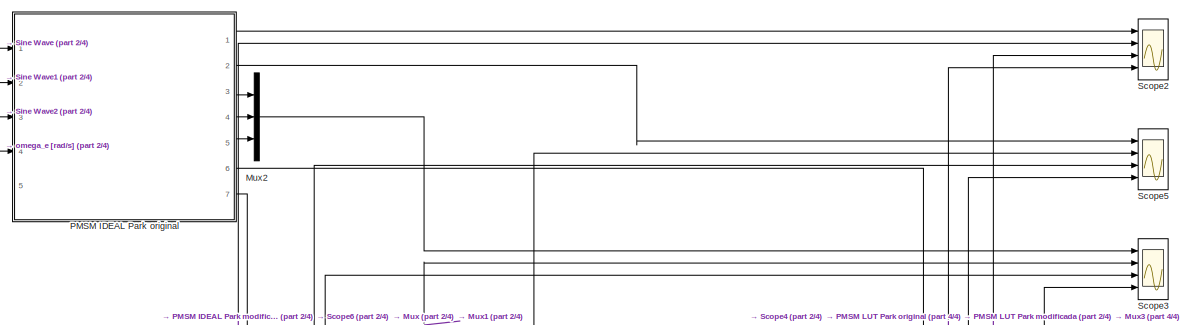
[diagram: root canvas - part 1/4, top center region]
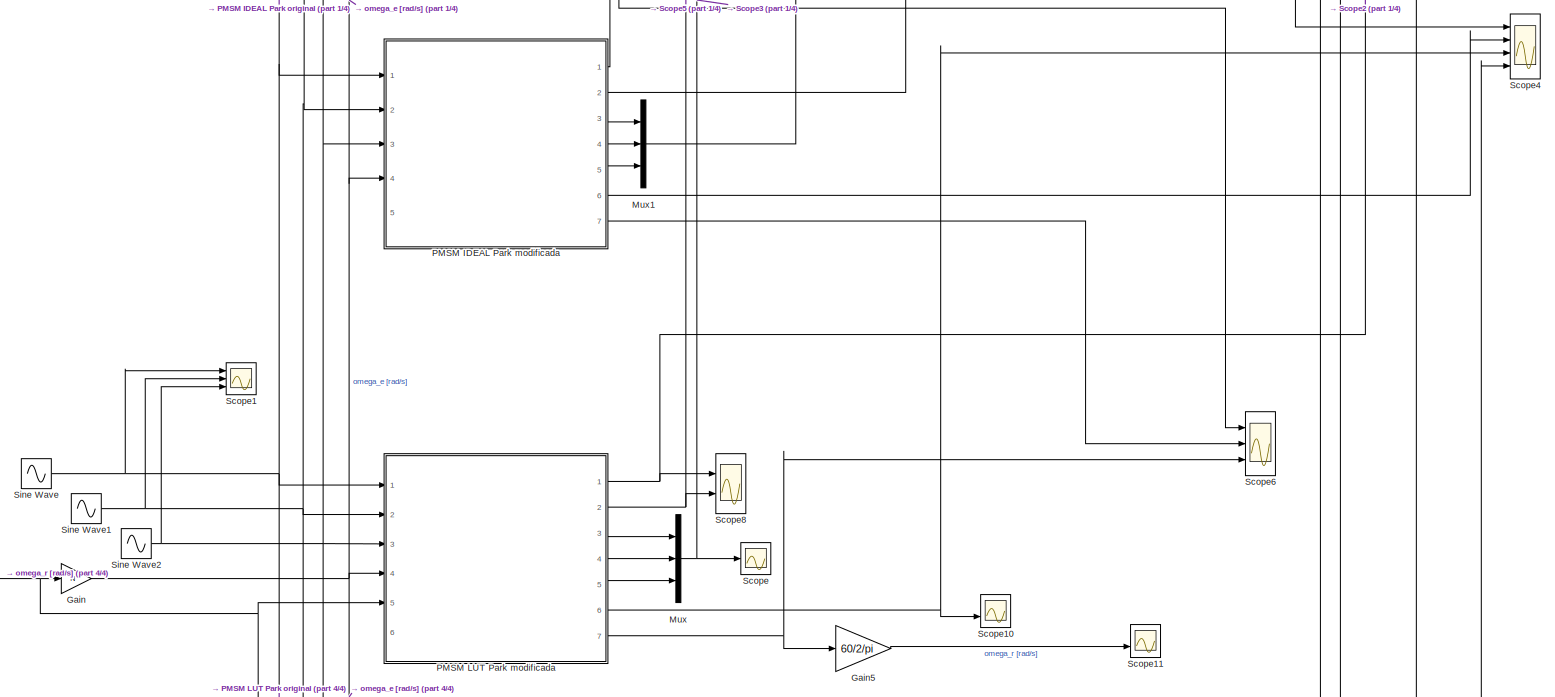
[diagram: root canvas - part 2/4, central region]
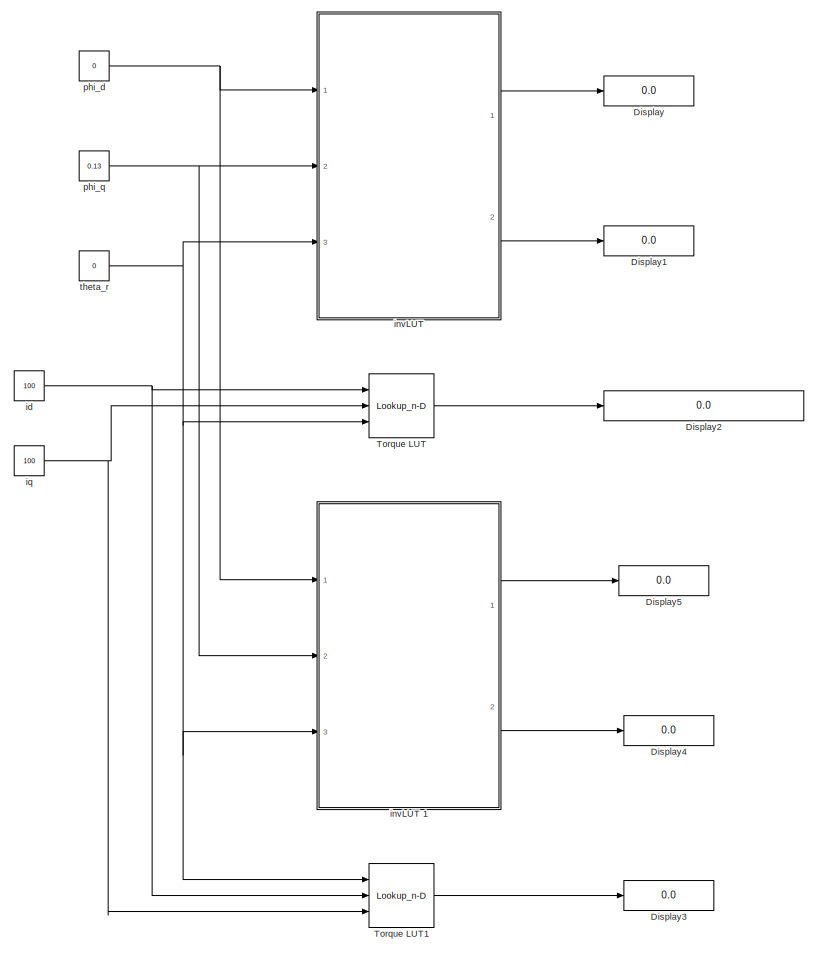
[diagram: root canvas - part 3/4, bottom right region]
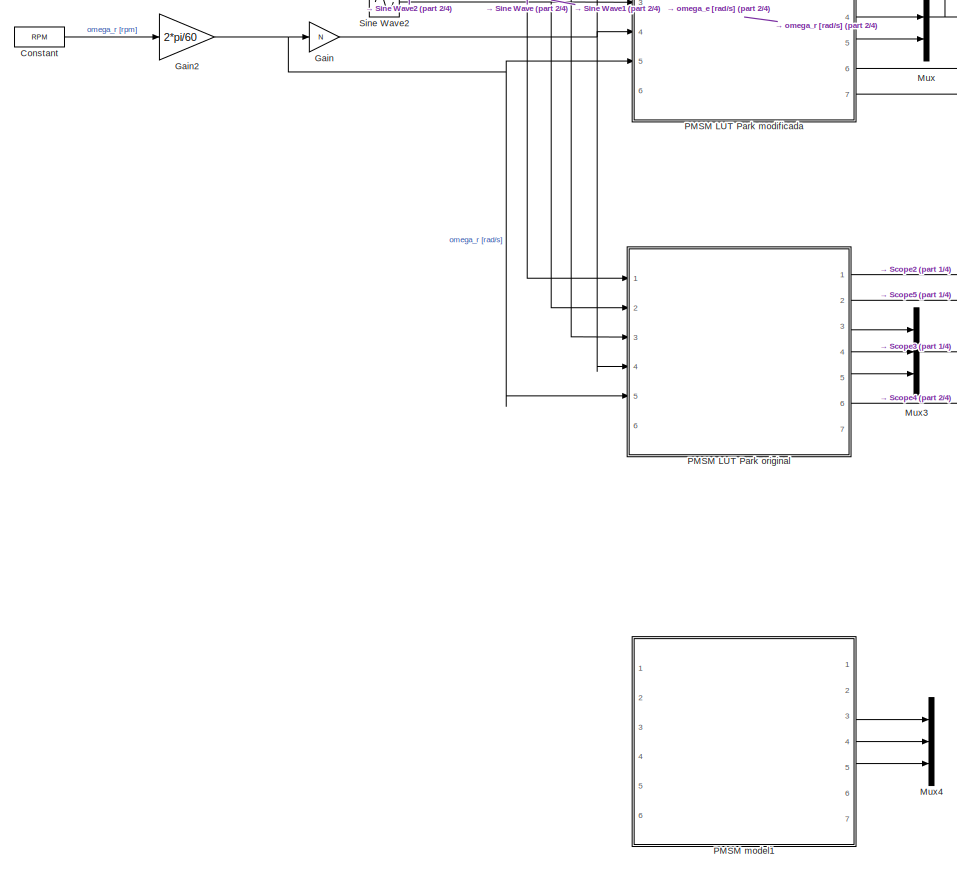
[diagram: root canvas - part 4/4, bottom left region]
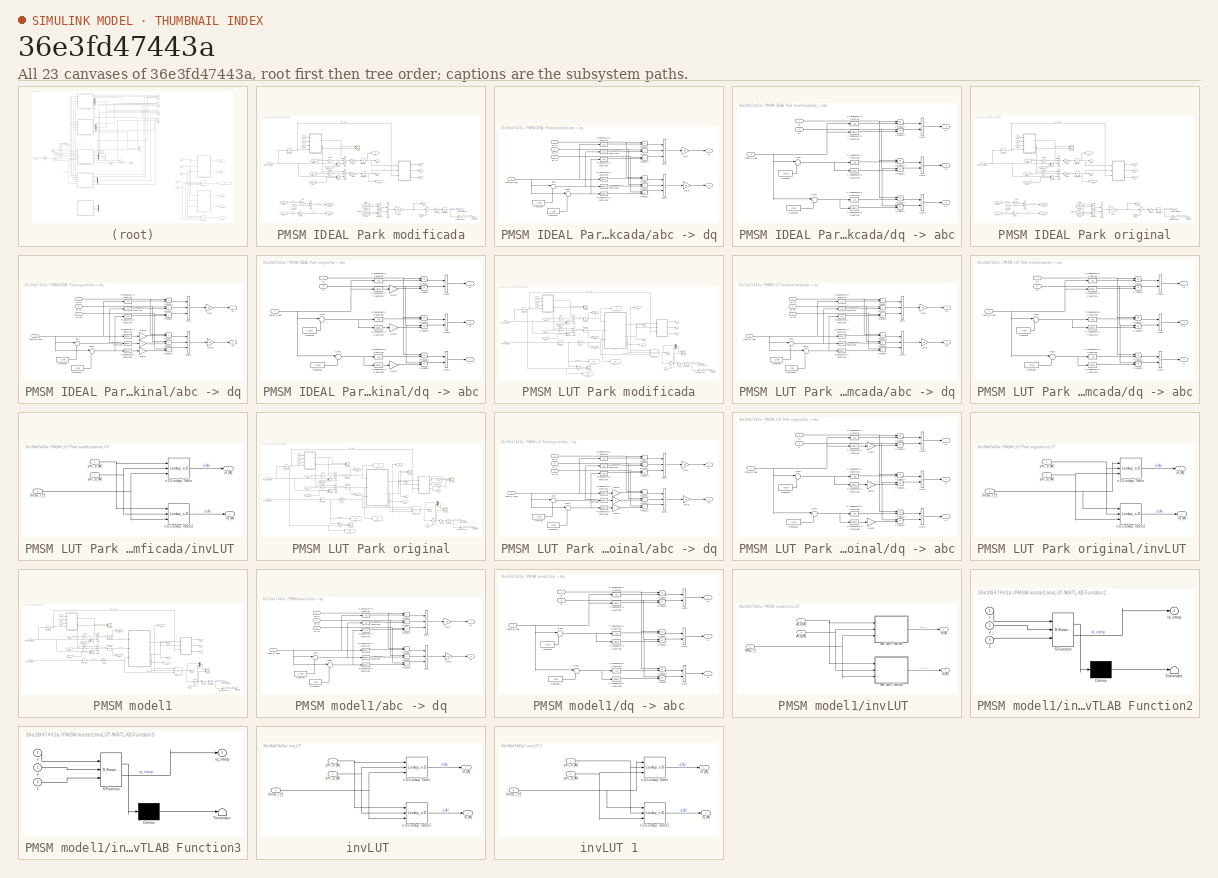
[diagram: thumbnail index - all 23 canvases of the model, root first then tree order]
MODEL slx_36e3fd47443a
KIND model
CONFIG AbsTol = 1e-3
CONFIG EnableMultiTasking = off
CONFIG FixedStep = Ts
CONFIG MaxStep = auto
CONFIG MinStep = auto
CONFIG RelTol = 1e-3
CONFIG SampleTimeConstraint = Unconstrained
CONFIG SolverName = FixedStepAuto
CONFIG StartTime = 0.0
CONFIG StopFcn = ee_addSimlogTimeStamp(bdroot)
CONFIG StopTime = tsim
BLOCK [Constant] Constant
  Value = RPM
BLOCK [Display] Display
  Decimation = 1
  Format = long
  Ports = [1]
BLOCK [Display] Display1
  Decimation = 1
  Ports = [1]
BLOCK [Display] Display2
  Decimation = 1
  Format = long
  Ports = [1]
BLOCK [Display] Display3
  Decimation = 1
  Ports = [1]
BLOCK [Display] Display4
  Decimation = 1
  Ports = [1]
BLOCK [Display] Display5
  Decimation = 1
  Format = long
  Ports = [1]
BLOCK [Gain] Gain
  Gain = N
BLOCK [Gain] Gain2
  Gain = 2*pi/60
BLOCK [Gain] Gain5
  Gain = 60/2/pi
BLOCK [Mux] Mux
  DisplayOption = bar
  Inputs = 3
  Ports = [3, 1]
BLOCK [Mux] Mux1
  DisplayOption = bar
  Inputs = 3
  Ports = [3, 1]
BLOCK [Mux] Mux2
  DisplayOption = bar
  Inputs = 3
  Ports = [3, 1]
BLOCK [Mux] Mux3
  DisplayOption = bar
  Inputs = 3
  Ports = [3, 1]
BLOCK [Mux] Mux4
  Commented = on
  DisplayOption = bar
  Inputs = 3
  Ports = [3, 1]
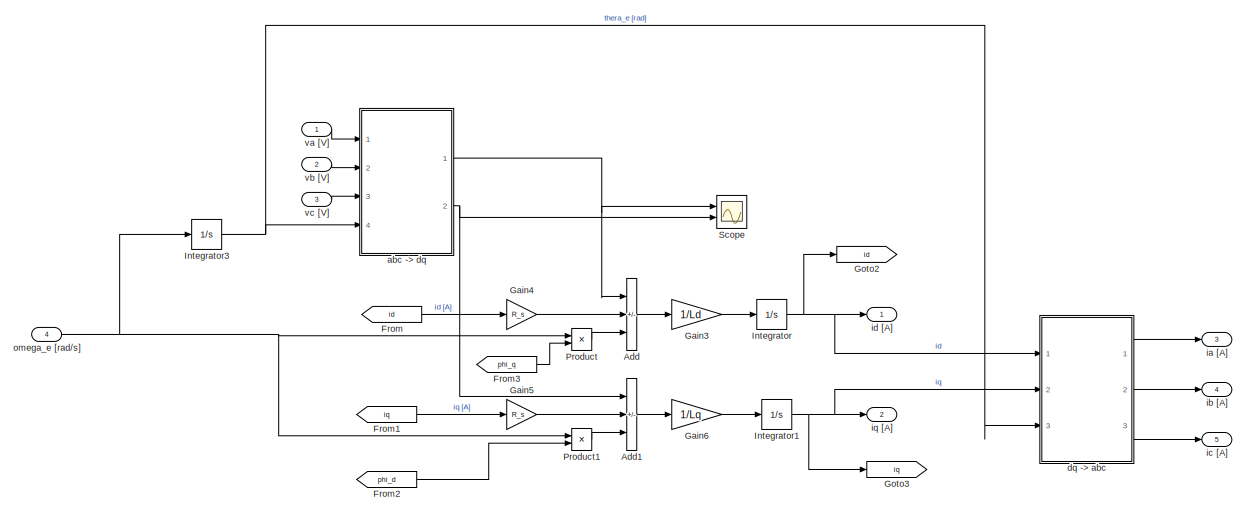
[diagram: PMSM IDEAL Park modificada - part 1/2, full width, middle band]
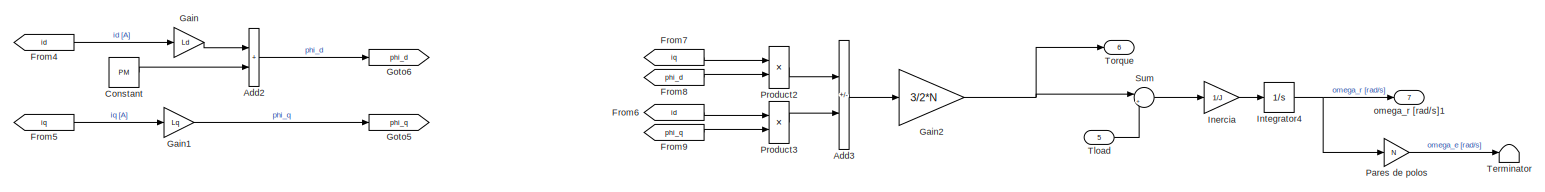
[diagram: PMSM IDEAL Park modificada - part 2/2, full width, bottom band]
BLOCK [SubSystem] PMSM IDEAL Park modificada
  Ports = [5, 7]
  RequestExecContextInheritance = off
BLOCK [Sum] PMSM IDEAL Park modificada/Add
  IconShape = rectangular
  Inputs = +--
  Ports = [3, 1]
BLOCK [Sum] PMSM IDEAL Park modificada/Add1
  IconShape = rectangular
  Inputs = +-+
  Ports = [3, 1]
BLOCK [Sum] PMSM IDEAL Park modificada/Add2
  IconShape = rectangular
  Ports = [2, 1]
BLOCK [Sum] PMSM IDEAL Park modificada/Add3
  IconShape = rectangular
  Inputs = -+
  Ports = [2, 1]
BLOCK [Constant] PMSM IDEAL Park modificada/Constant
  Value = PM
BLOCK [From] PMSM IDEAL Park modificada/From
  GotoTag = id
BLOCK [From] PMSM IDEAL Park modificada/From1
  GotoTag = iq
BLOCK [From] PMSM IDEAL Park modificada/From2
  GotoTag = phi_d
BLOCK [From] PMSM IDEAL Park modificada/From3
  GotoTag = phi_q
BLOCK [From] PMSM IDEAL Park modificada/From4
  GotoTag = id
BLOCK [From] PMSM IDEAL Park modificada/From5
  GotoTag = iq
BLOCK [From] PMSM IDEAL Park modificada/From6
  GotoTag = id
BLOCK [From] PMSM IDEAL Park modificada/From7
  GotoTag = iq
BLOCK [From] PMSM IDEAL Park modificada/From8
  GotoTag = phi_d
BLOCK [From] PMSM IDEAL Park modificada/From9
  GotoTag = phi_q
BLOCK [Gain] PMSM IDEAL Park modificada/Gain
  Gain = Ld
BLOCK [Gain] PMSM IDEAL Park modificada/Gain1
  Gain = Lq
BLOCK [Gain] PMSM IDEAL Park modificada/Gain2
  Gain = 3/2*N
BLOCK [Gain] PMSM IDEAL Park modificada/Gain3
  Gain = 1/Ld
BLOCK [Gain] PMSM IDEAL Park modificada/Gain4
  Gain = R_s
BLOCK [Gain] PMSM IDEAL Park modificada/Gain5
  Gain = R_s
BLOCK [Gain] PMSM IDEAL Park modificada/Gain6
  Gain = 1/Lq
BLOCK [Goto] PMSM IDEAL Park modificada/Goto2
  GotoTag = id
BLOCK [Goto] PMSM IDEAL Park modificada/Goto3
  GotoTag = iq
BLOCK [Goto] PMSM IDEAL Park modificada/Goto5
  GotoTag = phi_q
BLOCK [Goto] PMSM IDEAL Park modificada/Goto6
  GotoTag = phi_d
BLOCK [Gain] PMSM IDEAL Park modificada/Inercia
  Gain = 1/J
BLOCK [Integrator] PMSM IDEAL Park modificada/Integrator
  InitialCondition = -0.2
  Ports = [1, 1]
BLOCK [Integrator] PMSM IDEAL Park modificada/Integrator1
  Ports = [1, 1]
BLOCK [Integrator] PMSM IDEAL Park modificada/Integrator3
  Ports = [1, 1]
BLOCK [Integrator] PMSM IDEAL Park modificada/Integrator4
  InitialCondition = RPM*2*pi/60
  Ports = [1, 1]
BLOCK [Gain] PMSM IDEAL Park modificada/Pares de polos
  Gain = N
BLOCK [Product] PMSM IDEAL Park modificada/Product
  Ports = [2, 1]
BLOCK [Product] PMSM IDEAL Park modificada/Product1
  Ports = [2, 1]
BLOCK [Product] PMSM IDEAL Park modificada/Product2
  Ports = [2, 1]
BLOCK [Product] PMSM IDEAL Park modificada/Product3
  Ports = [2, 1]
BLOCK [Scope] PMSM IDEAL Park modificada/Scope
  Floating = off
  NumInputPorts = 2
  Ports = [2]
  ScopeSpecificationString = Simulink.scopes.TimeScopeBlockCfg('CurrentConfiguration', extmgr.ConfigurationSet(extmgr.Configuration('Core','General UI',true),extmgr.Configuration('Core','Source UI',true),extmgr.Configuration('Sources','WiredSimulink',true,'DataLoggingVariableName','ScopeData4'),extmgr.Configuration('Visuals','Time Domain',true,'SerializedDisplays',{struct('MinYLimReal','9.999999999999979','MaxYLimReal','10.00...<+2121ch>
BLOCK [Sum] PMSM IDEAL Park modificada/Sum
  Inputs = |+-
  Ports = [2, 1]
BLOCK [Terminator] PMSM IDEAL Park modificada/Terminator
BLOCK [Inport] PMSM IDEAL Park modificada/Tload
  Port = 5
BLOCK [Outport] PMSM IDEAL Park modificada/Torque
  Port = 6
BLOCK [SubSystem] PMSM IDEAL Park modificada/abc -> dq
  Ports = [4, 2]
  RequestExecContextInheritance = off
BLOCK [Constant] PMSM IDEAL Park modificada/abc -> dq/Constant
  Value = -2*pi/3
BLOCK [Constant] PMSM IDEAL Park modificada/abc -> dq/Constant1
  Value = 2*pi/3
BLOCK [Gain] PMSM IDEAL Park modificada/abc -> dq/Gain
  Gain = 2/3
BLOCK [Gain] PMSM IDEAL Park modificada/abc -> dq/Gain1
  Gain = 2/3
BLOCK [Product] PMSM IDEAL Park modificada/abc -> dq/Product1
  Ports = [2, 1]
  RndMeth = Zero
BLOCK [Product] PMSM IDEAL Park modificada/abc -> dq/Product2
  Ports = [2, 1]
  RndMeth = Zero
BLOCK [Product] PMSM IDEAL Park modificada/abc -> dq/Product3
  Ports = [2, 1]
  RndMeth = Zero
BLOCK [Product] PMSM IDEAL Park modificada/abc -> dq/Product4
  Ports = [2, 1]
  RndMeth = Zero
BLOCK [Product] PMSM IDEAL Park modificada/abc -> dq/Product5
  Ports = [2, 1]
  RndMeth = Zero
BLOCK [Product] PMSM IDEAL Park modificada/abc -> dq/Product6
  Ports = [2, 1]
  RndMeth = Zero
BLOCK [Sum] PMSM IDEAL Park modificada/abc -> dq/Sum
  Inputs = |++
  Ports = [2, 1]
BLOCK [Sum] PMSM IDEAL Park modificada/abc -> dq/Sum1
  Inputs = |++
  Ports = [2, 1]
BLOCK [Sum] PMSM IDEAL Park modificada/abc -> dq/Sum2
  IconShape = rectangular
  Inputs = +++
  Ports = [3, 1]
BLOCK [Sum] PMSM IDEAL Park modificada/abc -> dq/Sum3
  IconShape = rectangular
  Inputs = +++
  Ports = [3, 1]
BLOCK [Trigonometry] PMSM IDEAL Park modificada/abc -> dq/Trigonometric Function
  Operator = cos
  Ports = [1, 1]
BLOCK [Trigonometry] PMSM IDEAL Park modificada/abc -> dq/Trigonometric Function1
  Ports = [1, 1]
BLOCK [Trigonometry] PMSM IDEAL Park modificada/abc -> dq/Trigonometric Function2
  Operator = cos
  Ports = [1, 1]
BLOCK [Trigonometry] PMSM IDEAL Park modificada/abc -> dq/Trigonometric Function3
  Ports = [1, 1]
BLOCK [Trigonometry] PMSM IDEAL Park modificada/abc -> dq/Trigonometric Function4
  Operator = cos
  Ports = [1, 1]
BLOCK [Trigonometry] PMSM IDEAL Park modificada/abc -> dq/Trigonometric Function5
  Ports = [1, 1]
BLOCK [Inport] PMSM IDEAL Park modificada/abc -> dq/theta_e [rad]
  Port = 4
BLOCK [Inport] PMSM IDEAL Park modificada/abc -> dq/va [V]
BLOCK [Inport] PMSM IDEAL Park modificada/abc -> dq/vb [V]
  Port = 2
BLOCK [Inport] PMSM IDEAL Park modificada/abc -> dq/vc [V]
  Port = 3
BLOCK [Outport] PMSM IDEAL Park modificada/abc -> dq/vd
BLOCK [Outport] PMSM IDEAL Park modificada/abc -> dq/vq
  Port = 2
BLOCK [SubSystem] PMSM IDEAL Park modificada/dq -> abc
  Ports = [3, 3]
  RequestExecContextInheritance = off
BLOCK [Constant] PMSM IDEAL Park modificada/dq -> abc/Constant
  Value = -2*pi/3
BLOCK [Constant] PMSM IDEAL Park modificada/dq -> abc/Constant1
  Value = 2*pi/3
BLOCK [Product] PMSM IDEAL Park modificada/dq -> abc/Product1
  Ports = [2, 1]
  RndMeth = Zero
BLOCK [Product] PMSM IDEAL Park modificada/dq -> abc/Product2
  Ports = [2, 1]
  RndMeth = Zero
BLOCK [Product] PMSM IDEAL Park modificada/dq -> abc/Product3
  Ports = [2, 1]
  RndMeth = Zero
BLOCK [Product] PMSM IDEAL Park modificada/dq -> abc/Product4
  Ports = [2, 1]
  RndMeth = Zero
BLOCK [Product] PMSM IDEAL Park modificada/dq -> abc/Product5
  Ports = [2, 1]
  RndMeth = Zero
BLOCK [Product] PMSM IDEAL Park modificada/dq -> abc/Product6
  Ports = [2, 1]
  RndMeth = Zero
BLOCK [Sum] PMSM IDEAL Park modificada/dq -> abc/Sum
  Inputs = |++
  Ports = [2, 1]
BLOCK [Sum] PMSM IDEAL Park modificada/dq -> abc/Sum1
  Inputs = |++
  Ports = [2, 1]
BLOCK [Sum] PMSM IDEAL Park modificada/dq -> abc/Sum2
  IconShape = rectangular
  Ports = [2, 1]
BLOCK [Sum] PMSM IDEAL Park modificada/dq -> abc/Sum3
  IconShape = rectangular
  Ports = [2, 1]
BLOCK [Sum] PMSM IDEAL Park modificada/dq -> abc/Sum4
  IconShape = rectangular
  Ports = [2, 1]
BLOCK [Trigonometry] PMSM IDEAL Park modificada/dq -> abc/Trigonometric Function
  Operator = cos
  Ports = [1, 1]
BLOCK [Trigonometry] PMSM IDEAL Park modificada/dq -> abc/Trigonometric Function1
  Ports = [1, 1]
BLOCK [Trigonometry] PMSM IDEAL Park modificada/dq -> abc/Trigonometric Function2
  Operator = cos
  Ports = [1, 1]
BLOCK [Trigonometry] PMSM IDEAL Park modificada/dq -> abc/Trigonometric Function3
  Ports = [1, 1]
BLOCK [Trigonometry] PMSM IDEAL Park modificada/dq -> abc/Trigonometric Function4
  Operator = cos
  Ports = [1, 1]
BLOCK [Trigonometry] PMSM IDEAL Park modificada/dq -> abc/Trigonometric Function5
  Ports = [1, 1]
BLOCK [Outport] PMSM IDEAL Park modificada/dq -> abc/ia
BLOCK [Outport] PMSM IDEAL Park modificada/dq -> abc/ib
  Port = 2
BLOCK [Outport] PMSM IDEAL Park modificada/dq -> abc/ic
  Port = 3
BLOCK [Inport] PMSM IDEAL Park modificada/dq -> abc/id
BLOCK [Inport] PMSM IDEAL Park modificada/dq -> abc/iq
  Port = 2
BLOCK [Inport] PMSM IDEAL Park modificada/dq -> abc/theta_e [rad]
  Port = 3
BLOCK [Outport] PMSM IDEAL Park modificada/ia [A]
  Port = 3
BLOCK [Outport] PMSM IDEAL Park modificada/ib [A]
  Port = 4
BLOCK [Outport] PMSM IDEAL Park modificada/ic [A]
  Port = 5
BLOCK [Outport] PMSM IDEAL Park modificada/id [A]
BLOCK [Outport] PMSM IDEAL Park modificada/iq [A]
  Port = 2
BLOCK [Inport] PMSM IDEAL Park modificada/omega_e [rad//s]
  Port = 4
BLOCK [Outport] PMSM IDEAL Park modificada/omega_r [rad//s]1
  Port = 7
BLOCK [Inport] PMSM IDEAL Park modificada/va [V]
BLOCK [Inport] PMSM IDEAL Park modificada/vb [V]
  Port = 2
BLOCK [Inport] PMSM IDEAL Park modificada/vc [V]
  Port = 3
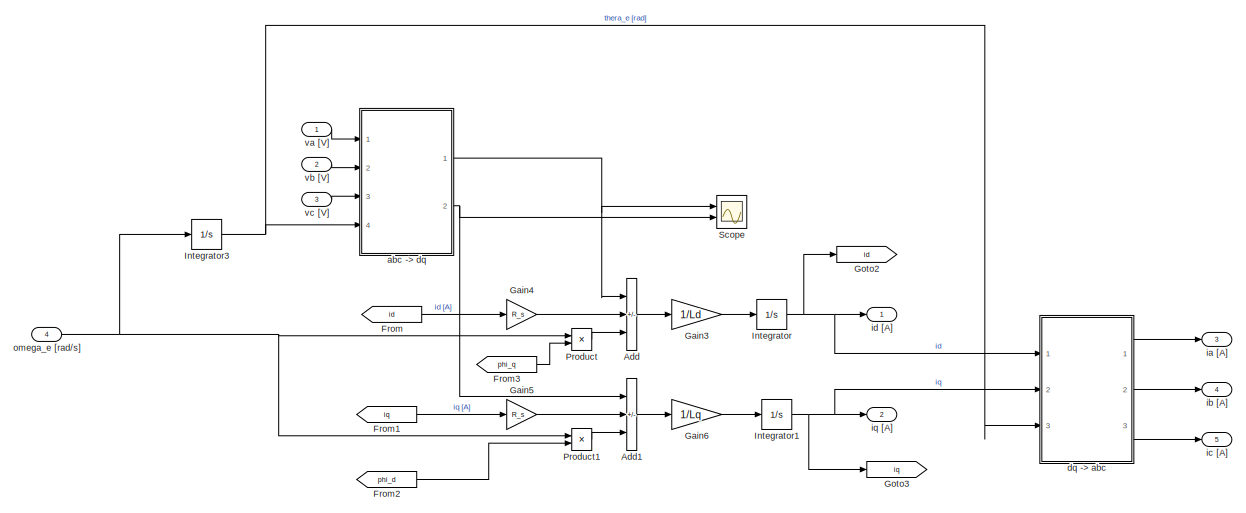
[diagram: PMSM IDEAL Park original - part 1/2, full width, middle band]
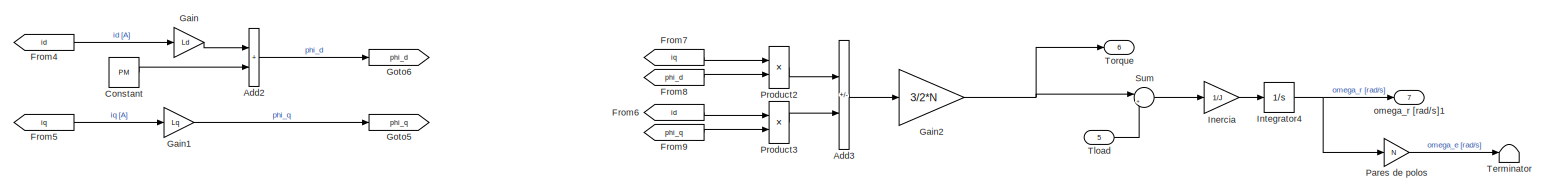
[diagram: PMSM IDEAL Park original - part 2/2, full width, bottom band]
BLOCK [SubSystem] PMSM IDEAL Park original
  Ports = [5, 7]
  RequestExecContextInheritance = off
BLOCK [Sum] PMSM IDEAL Park original/Add
  IconShape = rectangular
  Inputs = +-+
  Ports = [3, 1]
BLOCK [Sum] PMSM IDEAL Park original/Add1
  IconShape = rectangular
  Inputs = +--
  Ports = [3, 1]
BLOCK [Sum] PMSM IDEAL Park original/Add2
  IconShape = rectangular
  Ports = [2, 1]
BLOCK [Sum] PMSM IDEAL Park original/Add3
  IconShape = rectangular
  Inputs = +-
  Ports = [2, 1]
BLOCK [Constant] PMSM IDEAL Park original/Constant
  Value = PM
BLOCK [From] PMSM IDEAL Park original/From
  GotoTag = id
BLOCK [From] PMSM IDEAL Park original/From1
  GotoTag = iq
BLOCK [From] PMSM IDEAL Park original/From2
  GotoTag = phi_d
BLOCK [From] PMSM IDEAL Park original/From3
  GotoTag = phi_q
BLOCK [From] PMSM IDEAL Park original/From4
  GotoTag = id
BLOCK [From] PMSM IDEAL Park original/From5
  GotoTag = iq
BLOCK [From] PMSM IDEAL Park original/From6
  GotoTag = id
BLOCK [From] PMSM IDEAL Park original/From7
  GotoTag = iq
BLOCK [From] PMSM IDEAL Park original/From8
  GotoTag = phi_d
BLOCK [From] PMSM IDEAL Park original/From9
  GotoTag = phi_q
BLOCK [Gain] PMSM IDEAL Park original/Gain
  Gain = Ld
BLOCK [Gain] PMSM IDEAL Park original/Gain1
  Gain = Lq
BLOCK [Gain] PMSM IDEAL Park original/Gain2
  Gain = 3/2*N
BLOCK [Gain] PMSM IDEAL Park original/Gain3
  Gain = 1/Ld
BLOCK [Gain] PMSM IDEAL Park original/Gain4
  Gain = R_s
BLOCK [Gain] PMSM IDEAL Park original/Gain5
  Gain = R_s
BLOCK [Gain] PMSM IDEAL Park original/Gain6
  Gain = 1/Lq
BLOCK [Goto] PMSM IDEAL Park original/Goto2
  GotoTag = id
BLOCK [Goto] PMSM IDEAL Park original/Goto3
  GotoTag = iq
BLOCK [Goto] PMSM IDEAL Park original/Goto5
  GotoTag = phi_q
BLOCK [Goto] PMSM IDEAL Park original/Goto6
  GotoTag = phi_d
BLOCK [Gain] PMSM IDEAL Park original/Inercia
  Gain = 1/J
BLOCK [Integrator] PMSM IDEAL Park original/Integrator
  InitialCondition = -0.2
  Ports = [1, 1]
BLOCK [Integrator] PMSM IDEAL Park original/Integrator1
  Ports = [1, 1]
BLOCK [Integrator] PMSM IDEAL Park original/Integrator3
  Ports = [1, 1]
BLOCK [Integrator] PMSM IDEAL Park original/Integrator4
  InitialCondition = RPM*2*pi/60
  Ports = [1, 1]
BLOCK [Gain] PMSM IDEAL Park original/Pares de polos
  Gain = N
BLOCK [Product] PMSM IDEAL Park original/Product
  Ports = [2, 1]
BLOCK [Product] PMSM IDEAL Park original/Product1
  Ports = [2, 1]
BLOCK [Product] PMSM IDEAL Park original/Product2
  Ports = [2, 1]
BLOCK [Product] PMSM IDEAL Park original/Product3
  Ports = [2, 1]
BLOCK [Scope] PMSM IDEAL Park original/Scope
  Floating = off
  NumInputPorts = 2
  Ports = [2]
  ScopeSpecificationString = Simulink.scopes.TimeScopeBlockCfg('CurrentConfiguration', extmgr.ConfigurationSet(extmgr.Configuration('Core','General UI',true),extmgr.Configuration('Core','Source UI',true),extmgr.Configuration('Sources','WiredSimulink',true,'DataLoggingVariableName','ScopeData4'),extmgr.Configuration('Visuals','Time Domain',true,'SerializedDisplays',{struct('MinYLimReal','9.999999999999979','MaxYLimReal','10.00...<+2121ch>
BLOCK [Sum] PMSM IDEAL Park original/Sum
  Inputs = |+-
  Ports = [2, 1]
BLOCK [Terminator] PMSM IDEAL Park original/Terminator
BLOCK [Inport] PMSM IDEAL Park original/Tload
  Port = 5
BLOCK [Outport] PMSM IDEAL Park original/Torque
  Port = 6
BLOCK [SubSystem] PMSM IDEAL Park original/abc -> dq
  Ports = [4, 2]
  RequestExecContextInheritance = off
BLOCK [Constant] PMSM IDEAL Park original/abc -> dq/Constant
  Value = -2*pi/3
BLOCK [Constant] PMSM IDEAL Park original/abc -> dq/Constant1
  Value = 2*pi/3
BLOCK [Gain] PMSM IDEAL Park original/abc -> dq/Gain
  Gain = 2/3
BLOCK [Gain] PMSM IDEAL Park original/abc -> dq/Gain1
  Gain = 2/3
BLOCK [Gain] PMSM IDEAL Park original/abc -> dq/Gain2
  Gain = -1
BLOCK [Gain] PMSM IDEAL Park original/abc -> dq/Gain3
  Gain = -1
BLOCK [Gain] PMSM IDEAL Park original/abc -> dq/Gain4
  Gain = -1
BLOCK [Product] PMSM IDEAL Park original/abc -> dq/Product1
  Ports = [2, 1]
  RndMeth = Zero
BLOCK [Product] PMSM IDEAL Park original/abc -> dq/Product2
  Ports = [2, 1]
  RndMeth = Zero
BLOCK [Product] PMSM IDEAL Park original/abc -> dq/Product3
  Ports = [2, 1]
  RndMeth = Zero
BLOCK [Product] PMSM IDEAL Park original/abc -> dq/Product4
  Ports = [2, 1]
  RndMeth = Zero
BLOCK [Product] PMSM IDEAL Park original/abc -> dq/Product5
  Ports = [2, 1]
  RndMeth = Zero
BLOCK [Product] PMSM IDEAL Park original/abc -> dq/Product6
  Ports = [2, 1]
  RndMeth = Zero
BLOCK [Sum] PMSM IDEAL Park original/abc -> dq/Sum
  Inputs = |++
  Ports = [2, 1]
BLOCK [Sum] PMSM IDEAL Park original/abc -> dq/Sum1
  Inputs = |++
  Ports = [2, 1]
BLOCK [Sum] PMSM IDEAL Park original/abc -> dq/Sum2
  IconShape = rectangular
  Inputs = +++
  Ports = [3, 1]
BLOCK [Sum] PMSM IDEAL Park original/abc -> dq/Sum3
  IconShape = rectangular
  Inputs = +++
  Ports = [3, 1]
BLOCK [Trigonometry] PMSM IDEAL Park original/abc -> dq/Trigonometric Function
  Operator = cos
  Ports = [1, 1]
BLOCK [Trigonometry] PMSM IDEAL Park original/abc -> dq/Trigonometric Function1
  Ports = [1, 1]
BLOCK [Trigonometry] PMSM IDEAL Park original/abc -> dq/Trigonometric Function2
  Operator = cos
  Ports = [1, 1]
BLOCK [Trigonometry] PMSM IDEAL Park original/abc -> dq/Trigonometric Function3
  Ports = [1, 1]
BLOCK [Trigonometry] PMSM IDEAL Park original/abc -> dq/Trigonometric Function4
  Operator = cos
  Ports = [1, 1]
BLOCK [Trigonometry] PMSM IDEAL Park original/abc -> dq/Trigonometric Function5
  Ports = [1, 1]
BLOCK [Inport] PMSM IDEAL Park original/abc -> dq/theta_e [rad]
  Port = 4
BLOCK [Inport] PMSM IDEAL Park original/abc -> dq/va [V]
BLOCK [Inport] PMSM IDEAL Park original/abc -> dq/vb [V]
  Port = 2
BLOCK [Inport] PMSM IDEAL Park original/abc -> dq/vc [V]
  Port = 3
BLOCK [Outport] PMSM IDEAL Park original/abc -> dq/vd
BLOCK [Outport] PMSM IDEAL Park original/abc -> dq/vq
  Port = 2
BLOCK [SubSystem] PMSM IDEAL Park original/dq -> abc
  Ports = [3, 3]
  RequestExecContextInheritance = off
BLOCK [Constant] PMSM IDEAL Park original/dq -> abc/Constant
  Value = -2*pi/3
BLOCK [Constant] PMSM IDEAL Park original/dq -> abc/Constant1
  Value = 2*pi/3
BLOCK [Gain] PMSM IDEAL Park original/dq -> abc/Gain1
  Gain = -1
BLOCK [Gain] PMSM IDEAL Park original/dq -> abc/Gain2
  Gain = -1
BLOCK [Gain] PMSM IDEAL Park original/dq -> abc/Gain3
  Gain = -1
BLOCK [Product] PMSM IDEAL Park original/dq -> abc/Product1
  Ports = [2, 1]
  RndMeth = Zero
BLOCK [Product] PMSM IDEAL Park original/dq -> abc/Product2
  Ports = [2, 1]
  RndMeth = Zero
BLOCK [Product] PMSM IDEAL Park original/dq -> abc/Product3
  Ports = [2, 1]
  RndMeth = Zero
BLOCK [Product] PMSM IDEAL Park original/dq -> abc/Product4
  Ports = [2, 1]
  RndMeth = Zero
BLOCK [Product] PMSM IDEAL Park original/dq -> abc/Product5
  Ports = [2, 1]
  RndMeth = Zero
BLOCK [Product] PMSM IDEAL Park original/dq -> abc/Product6
  Ports = [2, 1]
  RndMeth = Zero
BLOCK [Sum] PMSM IDEAL Park original/dq -> abc/Sum
  Inputs = |++
  Ports = [2, 1]
BLOCK [Sum] PMSM IDEAL Park original/dq -> abc/Sum1
  Inputs = |++
  Ports = [2, 1]
BLOCK [Sum] PMSM IDEAL Park original/dq -> abc/Sum2
  IconShape = rectangular
  Ports = [2, 1]
BLOCK [Sum] PMSM IDEAL Park original/dq -> abc/Sum3
  IconShape = rectangular
  Ports = [2, 1]
BLOCK [Sum] PMSM IDEAL Park original/dq -> abc/Sum4
  IconShape = rectangular
  Ports = [2, 1]
BLOCK [Trigonometry] PMSM IDEAL Park original/dq -> abc/Trigonometric Function
  Operator = cos
  Ports = [1, 1]
BLOCK [Trigonometry] PMSM IDEAL Park original/dq -> abc/Trigonometric Function1
  Ports = [1, 1]
BLOCK [Trigonometry] PMSM IDEAL Park original/dq -> abc/Trigonometric Function2
  Operator = cos
  Ports = [1, 1]
BLOCK [Trigonometry] PMSM IDEAL Park original/dq -> abc/Trigonometric Function3
  Ports = [1, 1]
BLOCK [Trigonometry] PMSM IDEAL Park original/dq -> abc/Trigonometric Function4
  Operator = cos
  Ports = [1, 1]
BLOCK [Trigonometry] PMSM IDEAL Park original/dq -> abc/Trigonometric Function5
  Ports = [1, 1]
BLOCK [Outport] PMSM IDEAL Park original/dq -> abc/ia
BLOCK [Outport] PMSM IDEAL Park original/dq -> abc/ib
  Port = 2
BLOCK [Outport] PMSM IDEAL Park original/dq -> abc/ic
  Port = 3
BLOCK [Inport] PMSM IDEAL Park original/dq -> abc/id
BLOCK [Inport] PMSM IDEAL Park original/dq -> abc/iq
  Port = 2
BLOCK [Inport] PMSM IDEAL Park original/dq -> abc/theta_e [rad]
  Port = 3
BLOCK [Outport] PMSM IDEAL Park original/ia [A]
  Port = 3
BLOCK [Outport] PMSM IDEAL Park original/ib [A]
  Port = 4
BLOCK [Outport] PMSM IDEAL Park original/ic [A]
  Port = 5
BLOCK [Outport] PMSM IDEAL Park original/id [A]
BLOCK [Outport] PMSM IDEAL Park original/iq [A]
  Port = 2
BLOCK [Inport] PMSM IDEAL Park original/omega_e [rad//s]
  Port = 4
BLOCK [Outport] PMSM IDEAL Park original/omega_r [rad//s]1
  Port = 7
BLOCK [Inport] PMSM IDEAL Park original/va [V]
BLOCK [Inport] PMSM IDEAL Park original/vb [V]
  Port = 2
BLOCK [Inport] PMSM IDEAL Park original/vc [V]
  Port = 3
BLOCK [SubSystem] PMSM LUT Park modificada
  Ports = [6, 7]
  RequestExecContextInheritance = off
BLOCK [Sum] PMSM LUT Park modificada/Add
  IconShape = rectangular
  Inputs = +--
  Ports = [3, 1]
BLOCK [Sum] PMSM LUT Park modificada/Add1
  IconShape = rectangular
  Inputs = +-+
  Ports = [3, 1]
BLOCK [Display] PMSM LUT Park modificada/Display
  Decimation = 1
  Ports = [1]
BLOCK [Display] PMSM LUT Park modificada/Display1
  Decimation = 1
  Ports = [1]
BLOCK [Display] PMSM LUT Park modificada/Display2
  Decimation = 1
  Ports = [1]
BLOCK [Display] PMSM LUT Park modificada/Display3
  Decimation = 1
  Ports = [1]
BLOCK [From] PMSM LUT Park modificada/From
  GotoTag = id
BLOCK [From] PMSM LUT Park modificada/From1
  GotoTag = iq
BLOCK [From] PMSM LUT Park modificada/From2
  GotoTag = phi_d
BLOCK [From] PMSM LUT Park modificada/From3
  GotoTag = phi_q
BLOCK [Gain] PMSM LUT Park modificada/Gain
  Gain = N
BLOCK [Gain] PMSM LUT Park modificada/Gain3
  Gain = 180/pi
BLOCK [Gain] PMSM LUT Park modificada/Gain4
  Gain = R_s
BLOCK [Gain] PMSM LUT Park modificada/Gain5
  Gain = R_s
BLOCK [Goto] PMSM LUT Park modificada/Goto
  GotoTag = id
BLOCK [Goto] PMSM LUT Park modificada/Goto1
  GotoTag = iq
BLOCK [Goto] PMSM LUT Park modificada/Goto2
  GotoTag = phi_d
BLOCK [Goto] PMSM LUT Park modificada/Goto3
  GotoTag = phi_q
BLOCK [Goto] PMSM LUT Park modificada/Goto4
  GotoTag = thetar_deg
  TagVisibility = global
BLOCK [Gain] PMSM LUT Park modificada/Inercia
  Gain = 1/J
BLOCK [Integrator] PMSM LUT Park modificada/Integrator
  InitialCondition = -0.2
  Ports = [1, 1]
BLOCK [Integrator] PMSM LUT Park modificada/Integrator1
  Ports = [1, 1]
BLOCK [Integrator] PMSM LUT Park modificada/Integrator2
  Ports = [1, 1]
  WrapState = on
  WrappedStateLowerValue = 0
  WrappedStateUpperValue = 2*pi/3/N
BLOCK [Integrator] PMSM LUT Park modificada/Integrator3
  Ports = [1, 1]
BLOCK [Integrator] PMSM LUT Park modificada/Integrator4
  InitialCondition = RPM*2*pi/60
  Ports = [1, 1]
BLOCK [Mux] PMSM LUT Park modificada/Mux
  DisplayOption = bar
  Inputs = 2
  Ports = [2, 1]
BLOCK [Gain] PMSM LUT Park modificada/Pares de polos
  Gain = N
BLOCK [Product] PMSM LUT Park modificada/Product
  Ports = [2, 1]
BLOCK [Product] PMSM LUT Park modificada/Product1
  Ports = [2, 1]
BLOCK [Scope] PMSM LUT Park modificada/Scope
  Floating = off
  NumInputPorts = 2
  Ports = [2]
  ScopeSpecificationString = Simulink.scopes.TimeScopeBlockCfg('CurrentConfiguration', extmgr.ConfigurationSet(extmgr.Configuration('Core','General UI',true),extmgr.Configuration('Core','Source UI',true),extmgr.Configuration('Sources','WiredSimulink',true,'DataLoggingVariableName','ScopeData4'),extmgr.Configuration('Visuals','Time Domain',true,'SerializedDisplays',{struct('MinYLimReal','99.9999999999994','MaxYLimReal','100.00...<+2114ch>
BLOCK [Scope] PMSM LUT Park modificada/Scope1
  Floating = off
  NumInputPorts = 2
  Ports = [2]
  ScopeSpecificationString = Simulink.scopes.TimeScopeBlockCfg('CurrentConfiguration', extmgr.ConfigurationSet(extmgr.Configuration('Core','General UI',true),extmgr.Configuration('Core','Source UI',true),extmgr.Configuration('Sources','WiredSimulink',true,'DataLoggingVariableName','ScopeData1'),extmgr.Configuration('Visuals','Time Domain',true,'SerializedDisplays',{struct('MinYLimReal','-225.63211','MaxYLimReal','485.71628','...<+2404ch>
BLOCK [Scope] PMSM LUT Park modificada/Scope2
  Floating = off
  NumInputPorts = 2
  Ports = [2]
  ScopeSpecificationString = Simulink.scopes.TimeScopeBlockCfg('CurrentConfiguration', extmgr.ConfigurationSet(extmgr.Configuration('Core','General UI',true),extmgr.Configuration('Core','Source UI',true),extmgr.Configuration('Sources','WiredSimulink',true,'DataLoggingVariableName','ScopeData3'),extmgr.Configuration('Visuals','Time Domain',true,'SerializedDisplays',{struct('MinYLimReal','-7.85398','MaxYLimReal','70.68583','YLa...<+1411ch>
BLOCK [Sum] PMSM LUT Park modificada/Sum
  Inputs = |+-
  Ports = [2, 1]
BLOCK [Terminator] PMSM LUT Park modificada/Terminator
BLOCK [Inport] PMSM LUT Park modificada/Tload
  Port = 6
BLOCK [Outport] PMSM LUT Park modificada/Torque
  Port = 6
BLOCK [Lookup_n-D] PMSM LUT Park modificada/Torque LUT
  BreakpointsForDimension1 = idVec
  BreakpointsForDimension2 = iqVec
  BreakpointsForDimension3 = angleVec
  InputPortMap = u0,u1,u2
  InternalRulePriority = Speed
  LookupTableObject = iD
  NumberOfTableDimensions = 3
  Ports = [3, 1]
  RndMeth = Simplest
  Table = torque
BLOCK [SubSystem] PMSM LUT Park modificada/abc -> dq
  Ports = [4, 2]
  RequestExecContextInheritance = off
BLOCK [Constant] PMSM LUT Park modificada/abc -> dq/Constant
  Value = -2*pi/3
BLOCK [Constant] PMSM LUT Park modificada/abc -> dq/Constant1
  Value = 2*pi/3
BLOCK [Gain] PMSM LUT Park modificada/abc -> dq/Gain
  Gain = 2/3
BLOCK [Gain] PMSM LUT Park modificada/abc -> dq/Gain1
  Gain = 2/3
BLOCK [Product] PMSM LUT Park modificada/abc -> dq/Product1
  Ports = [2, 1]
  RndMeth = Zero
BLOCK [Product] PMSM LUT Park modificada/abc -> dq/Product2
  Ports = [2, 1]
  RndMeth = Zero
BLOCK [Product] PMSM LUT Park modificada/abc -> dq/Product3
  Ports = [2, 1]
  RndMeth = Zero
BLOCK [Product] PMSM LUT Park modificada/abc -> dq/Product4
  Ports = [2, 1]
  RndMeth = Zero
BLOCK [Product] PMSM LUT Park modificada/abc -> dq/Product5
  Ports = [2, 1]
  RndMeth = Zero
BLOCK [Product] PMSM LUT Park modificada/abc -> dq/Product6
  Ports = [2, 1]
  RndMeth = Zero
BLOCK [Sum] PMSM LUT Park modificada/abc -> dq/Sum
  Inputs = |++
  Ports = [2, 1]
BLOCK [Sum] PMSM LUT Park modificada/abc -> dq/Sum1
  Inputs = |++
  Ports = [2, 1]
BLOCK [Sum] PMSM LUT Park modificada/abc -> dq/Sum2
  IconShape = rectangular
  Inputs = +++
  Ports = [3, 1]
BLOCK [Sum] PMSM LUT Park modificada/abc -> dq/Sum3
  IconShape = rectangular
  Inputs = +++
  Ports = [3, 1]
BLOCK [Trigonometry] PMSM LUT Park modificada/abc -> dq/Trigonometric Function
  Operator = cos
  Ports = [1, 1]
BLOCK [Trigonometry] PMSM LUT Park modificada/abc -> dq/Trigonometric Function1
  Ports = [1, 1]
BLOCK [Trigonometry] PMSM LUT Park modificada/abc -> dq/Trigonometric Function2
  Operator = cos
  Ports = [1, 1]
BLOCK [Trigonometry] PMSM LUT Park modificada/abc -> dq/Trigonometric Function3
  Ports = [1, 1]
BLOCK [Trigonometry] PMSM LUT Park modificada/abc -> dq/Trigonometric Function4
  Operator = cos
  Ports = [1, 1]
BLOCK [Trigonometry] PMSM LUT Park modificada/abc -> dq/Trigonometric Function5
  Ports = [1, 1]
BLOCK [Inport] PMSM LUT Park modificada/abc -> dq/theta_e [rad]
  Port = 4
BLOCK [Inport] PMSM LUT Park modificada/abc -> dq/va [V]
BLOCK [Inport] PMSM LUT Park modificada/abc -> dq/vb [V]
  Port = 2
BLOCK [Inport] PMSM LUT Park modificada/abc -> dq/vc [V]
  Port = 3
BLOCK [Outport] PMSM LUT Park modificada/abc -> dq/vd
BLOCK [Outport] PMSM LUT Park modificada/abc -> dq/vq
  Port = 2
BLOCK [SubSystem] PMSM LUT Park modificada/dq -> abc
  Ports = [3, 3]
  RequestExecContextInheritance = off
BLOCK [Constant] PMSM LUT Park modificada/dq -> abc/Constant
  Value = -2*pi/3
BLOCK [Constant] PMSM LUT Park modificada/dq -> abc/Constant1
  Value = 2*pi/3
BLOCK [Product] PMSM LUT Park modificada/dq -> abc/Product1
  Ports = [2, 1]
  RndMeth = Zero
BLOCK [Product] PMSM LUT Park modificada/dq -> abc/Product2
  Ports = [2, 1]
  RndMeth = Zero
BLOCK [Product] PMSM LUT Park modificada/dq -> abc/Product3
  Ports = [2, 1]
  RndMeth = Zero
BLOCK [Product] PMSM LUT Park modificada/dq -> abc/Product4
  Ports = [2, 1]
  RndMeth = Zero
BLOCK [Product] PMSM LUT Park modificada/dq -> abc/Product5
  Ports = [2, 1]
  RndMeth = Zero
BLOCK [Product] PMSM LUT Park modificada/dq -> abc/Product6
  Ports = [2, 1]
  RndMeth = Zero
BLOCK [Sum] PMSM LUT Park modificada/dq -> abc/Sum
  Inputs = |++
  Ports = [2, 1]
BLOCK [Sum] PMSM LUT Park modificada/dq -> abc/Sum1
  Inputs = |++
  Ports = [2, 1]
BLOCK [Sum] PMSM LUT Park modificada/dq -> abc/Sum2
  IconShape = rectangular
  Ports = [2, 1]
BLOCK [Sum] PMSM LUT Park modificada/dq -> abc/Sum3
  IconShape = rectangular
  Ports = [2, 1]
BLOCK [Sum] PMSM LUT Park modificada/dq -> abc/Sum4
  IconShape = rectangular
  Ports = [2, 1]
BLOCK [Trigonometry] PMSM LUT Park modificada/dq -> abc/Trigonometric Function
  Operator = cos
  Ports = [1, 1]
BLOCK [Trigonometry] PMSM LUT Park modificada/dq -> abc/Trigonometric Function1
  Ports = [1, 1]
BLOCK [Trigonometry] PMSM LUT Park modificada/dq -> abc/Trigonometric Function2
  Operator = cos
  Ports = [1, 1]
BLOCK [Trigonometry] PMSM LUT Park modificada/dq -> abc/Trigonometric Function3
  Ports = [1, 1]
BLOCK [Trigonometry] PMSM LUT Park modificada/dq -> abc/Trigonometric Function4
  Operator = cos
  Ports = [1, 1]
BLOCK [Trigonometry] PMSM LUT Park modificada/dq -> abc/Trigonometric Function5
  Ports = [1, 1]
BLOCK [Outport] PMSM LUT Park modificada/dq -> abc/ia
BLOCK [Outport] PMSM LUT Park modificada/dq -> abc/ib
  Port = 2
BLOCK [Outport] PMSM LUT Park modificada/dq -> abc/ic
  Port = 3
BLOCK [Inport] PMSM LUT Park modificada/dq -> abc/id
BLOCK [Inport] PMSM LUT Park modificada/dq -> abc/iq
  Port = 2
BLOCK [Inport] PMSM LUT Park modificada/dq -> abc/theta_e [rad]
  Port = 3
BLOCK [Outport] PMSM LUT Park modificada/ia [A]
  Port = 3
BLOCK [Outport] PMSM LUT Park modificada/ib [A]
  Port = 4
BLOCK [Outport] PMSM LUT Park modificada/ic [A]
  Port = 5
BLOCK [Outport] PMSM LUT Park modificada/id [A]
BLOCK [SubSystem] PMSM LUT Park modificada/invLUT 
  Ports = [3, 2]
  RequestExecContextInheritance = off
BLOCK [Outport] PMSM LUT Park modificada/invLUT /id [A]
BLOCK [Outport] PMSM LUT Park modificada/invLUT /iq [A]
  Port = 2
BLOCK [Lookup_n-D] PMSM LUT Park modificada/invLUT /n-D Lookup Table
  BreakpointsForDimension1 = data.phi_d
  BreakpointsForDimension2 = data.phi_q
  BreakpointsForDimension3 = data.theta
  InputPortMap = u0,u1,u2
  InternalRulePriority = Speed
  LookupTableObject = iD
  NumberOfTableDimensions = 3
  Ports = [3, 1]
  RndMeth = Simplest
  Table = data.i_d
BLOCK [Lookup_n-D] PMSM LUT Park modificada/invLUT /n-D Lookup Table2
  BreakpointsForDimension1 = data.phi_d
  BreakpointsForDimension2 = data.phi_q
  BreakpointsForDimension3 = data.theta
  InputPortMap = u0,u1,u2
  InternalRulePriority = Speed
  LookupTableObject = iD
  NumberOfTableDimensions = 3
  Ports = [3, 1]
  RndMeth = Simplest
  Table = data.i_q
BLOCK [Inport] PMSM LUT Park modificada/invLUT /phi_d [A]
BLOCK [Inport] PMSM LUT Park modificada/invLUT /phi_q [A]
  Port = 2
BLOCK [Inport] PMSM LUT Park modificada/invLUT /theta_r [º]
  Port = 3
BLOCK [Outport] PMSM LUT Park modificada/iq [A]
  Port = 2
BLOCK [Inport] PMSM LUT Park modificada/omega_e [rad//s]
  Port = 4
BLOCK [Inport] PMSM LUT Park modificada/omega_r [rad//s]
  Port = 5
BLOCK [Outport] PMSM LUT Park modificada/omega_r [rad//s]1
  Port = 7
BLOCK [Inport] PMSM LUT Park modificada/va [V]
BLOCK [Inport] PMSM LUT Park modificada/vb [V]
  Port = 2
BLOCK [Inport] PMSM LUT Park modificada/vc [V]
  Port = 3
BLOCK [SubSystem] PMSM LUT Park original
  Ports = [6, 7]
  RequestExecContextInheritance = off
BLOCK [Sum] PMSM LUT Park original/Add
  IconShape = rectangular
  Inputs = +-+
  Ports = [3, 1]
BLOCK [Sum] PMSM LUT Park original/Add1
  IconShape = rectangular
  Inputs = +--
  Ports = [3, 1]
BLOCK [Display] PMSM LUT Park original/Display
  Decimation = 1
  Ports = [1]
BLOCK [Display] PMSM LUT Park original/Display1
  Decimation = 1
  Ports = [1]
BLOCK [Display] PMSM LUT Park original/Display2
  Decimation = 1
  Ports = [1]
BLOCK [Display] PMSM LUT Park original/Display3
  Decimation = 1
  Ports = [1]
BLOCK [From] PMSM LUT Park original/From
  GotoTag = id
BLOCK [From] PMSM LUT Park original/From1
  GotoTag = iq
BLOCK [From] PMSM LUT Park original/From2
  GotoTag = phi_d
BLOCK [From] PMSM LUT Park original/From3
  GotoTag = phi_q
BLOCK [Gain] PMSM LUT Park original/Gain
  Gain = N
BLOCK [Gain] PMSM LUT Park original/Gain3
  Gain = 180/pi
BLOCK [Gain] PMSM LUT Park original/Gain4
  Gain = R_s
BLOCK [Gain] PMSM LUT Park original/Gain5
  Gain = R_s
BLOCK [Goto] PMSM LUT Park original/Goto
  GotoTag = id
BLOCK [Goto] PMSM LUT Park original/Goto1
  GotoTag = iq
BLOCK [Goto] PMSM LUT Park original/Goto2
  GotoTag = phi_d
BLOCK [Goto] PMSM LUT Park original/Goto3
  GotoTag = phi_q
BLOCK [Gain] PMSM LUT Park original/Inercia
  Gain = 1/J
BLOCK [Integrator] PMSM LUT Park original/Integrator
  InitialCondition = -0.2
  Ports = [1, 1]
BLOCK [Integrator] PMSM LUT Park original/Integrator1
  Ports = [1, 1]
BLOCK [Integrator] PMSM LUT Park original/Integrator2
  Ports = [1, 1]
  WrapState = on
  WrappedStateLowerValue = 0
  WrappedStateUpperValue = 2*pi/3/N
BLOCK [Integrator] PMSM LUT Park original/Integrator3
  Ports = [1, 1]
BLOCK [Integrator] PMSM LUT Park original/Integrator4
  InitialCondition = RPM*2*pi/60
  Ports = [1, 1]
BLOCK [Mux] PMSM LUT Park original/Mux
  DisplayOption = bar
  Inputs = 2
  Ports = [2, 1]
BLOCK [Gain] PMSM LUT Park original/Pares de polos
  Gain = N
BLOCK [Product] PMSM LUT Park original/Product
  Ports = [2, 1]
BLOCK [Product] PMSM LUT Park original/Product1
  Ports = [2, 1]
BLOCK [Scope] PMSM LUT Park original/Scope
  Floating = off
  NumInputPorts = 2
  Ports = [2]
  ScopeSpecificationString = Simulink.scopes.TimeScopeBlockCfg('CurrentConfiguration', extmgr.ConfigurationSet(extmgr.Configuration('Core','General UI',true),extmgr.Configuration('Core','Source UI',true),extmgr.Configuration('Sources','WiredSimulink',true,'DataLoggingVariableName','ScopeData4'),extmgr.Configuration('Visuals','Time Domain',true,'SerializedDisplays',{struct('MinYLimReal','9.99999999999975','MaxYLimReal','10.000...<+2114ch>
BLOCK [Scope] PMSM LUT Park original/Scope1
  Floating = off
  NumInputPorts = 2
  Ports = [2]
  ScopeSpecificationString = Simulink.scopes.TimeScopeBlockCfg('CurrentConfiguration', extmgr.ConfigurationSet(extmgr.Configuration('Core','General UI',true),extmgr.Configuration('Core','Source UI',true),extmgr.Configuration('Sources','WiredSimulink',true,'DataLoggingVariableName','ScopeData1'),extmgr.Configuration('Visuals','Time Domain',true,'SerializedDisplays',{struct('MinYLimReal','-225.63211','MaxYLimReal','485.71628','...<+2084ch>
BLOCK [Scope] PMSM LUT Park original/Scope2
  Floating = off
  NumInputPorts = 2
  Ports = [2]
  ScopeSpecificationString = Simulink.scopes.TimeScopeBlockCfg('CurrentConfiguration', extmgr.ConfigurationSet(extmgr.Configuration('Core','General UI',true),extmgr.Configuration('Core','Source UI',true),extmgr.Configuration('Sources','WiredSimulink',true,'DataLoggingVariableName','ScopeData3'),extmgr.Configuration('Visuals','Time Domain',true,'SerializedDisplays',{struct('MinYLimReal','-7.85398','MaxYLimReal','70.68583','YLa...<+1411ch>
BLOCK [Scope] PMSM LUT Park original/Scope3
  Floating = off
  NumInputPorts = 3
  Ports = [3]
  ScopeSpecificationString = Simulink.scopes.TimeScopeBlockCfg('CurrentConfiguration', extmgr.ConfigurationSet(extmgr.Configuration('Core','General UI',true),extmgr.Configuration('Core','Source UI',true),extmgr.Configuration('Sources','WiredSimulink',true,'DataLoggingVariableName','ScopeData1'),extmgr.Configuration('Visuals','Time Domain',true,'SerializedDisplays',{struct('MinYLimReal','-364.2412','MaxYLimReal','278.17136','Y...<+1584ch>
BLOCK [Scope] PMSM LUT Park original/Scope4
  Floating = off
  NumInputPorts = 2
  Ports = [2]
  ScopeSpecificationString = Simulink.scopes.TimeScopeBlockCfg('CurrentConfiguration', extmgr.ConfigurationSet(extmgr.Configuration('Core','General UI',true),extmgr.Configuration('Core','Source UI',true),extmgr.Configuration('Sources','WiredSimulink',true,'DataLoggingVariableName','ScopeData2'),extmgr.Configuration('Visuals','Time Domain',true,'SerializedDisplays',{struct('MinYLimReal','-136.87187','MaxYLimReal','-114.96493',...<+2091ch>
BLOCK [Sum] PMSM LUT Park original/Sum
  Inputs = |+-
  Ports = [2, 1]
BLOCK [Terminator] PMSM LUT Park original/Terminator
BLOCK [Inport] PMSM LUT Park original/Tload
  Port = 6
BLOCK [Outport] PMSM LUT Park original/Torque
  Port = 6
BLOCK [Lookup_n-D] PMSM LUT Park original/Torque LUT
  BreakpointsForDimension1 = angleVec
  BreakpointsForDimension2 = idVec
  BreakpointsForDimension3 = iqVec
  InputPortMap = u0,u1,u2
  InternalRulePriority = Speed
  LookupTableObject = iD
  NumberOfTableDimensions = 3
  Ports = [3, 1]
  RndMeth = Simplest
  Table = Torque_perm
BLOCK [SubSystem] PMSM LUT Park original/abc -> dq
  Ports = [4, 2]
  RequestExecContextInheritance = off
BLOCK [Constant] PMSM LUT Park original/abc -> dq/Constant
  Value = -2*pi/3
BLOCK [Constant] PMSM LUT Park original/abc -> dq/Constant1
  Value = 2*pi/3
BLOCK [Gain] PMSM LUT Park original/abc -> dq/Gain
  Gain = 2/3
BLOCK [Gain] PMSM LUT Park original/abc -> dq/Gain1
  Gain = 2/3
BLOCK [Gain] PMSM LUT Park original/abc -> dq/Gain2
  Gain = -1
BLOCK [Gain] PMSM LUT Park original/abc -> dq/Gain3
  Gain = -1
BLOCK [Gain] PMSM LUT Park original/abc -> dq/Gain4
  Gain = -1
BLOCK [Product] PMSM LUT Park original/abc -> dq/Product1
  Ports = [2, 1]
  RndMeth = Zero
BLOCK [Product] PMSM LUT Park original/abc -> dq/Product2
  Ports = [2, 1]
  RndMeth = Zero
BLOCK [Product] PMSM LUT Park original/abc -> dq/Product3
  Ports = [2, 1]
  RndMeth = Zero
BLOCK [Product] PMSM LUT Park original/abc -> dq/Product4
  Ports = [2, 1]
  RndMeth = Zero
BLOCK [Product] PMSM LUT Park original/abc -> dq/Product5
  Ports = [2, 1]
  RndMeth = Zero
BLOCK [Product] PMSM LUT Park original/abc -> dq/Product6
  Ports = [2, 1]
  RndMeth = Zero
BLOCK [Sum] PMSM LUT Park original/abc -> dq/Sum
  Inputs = |++
  Ports = [2, 1]
BLOCK [Sum] PMSM LUT Park original/abc -> dq/Sum1
  Inputs = |++
  Ports = [2, 1]
BLOCK [Sum] PMSM LUT Park original/abc -> dq/Sum2
  IconShape = rectangular
  Inputs = +++
  Ports = [3, 1]
BLOCK [Sum] PMSM LUT Park original/abc -> dq/Sum3
  IconShape = rectangular
  Inputs = +++
  Ports = [3, 1]
BLOCK [Trigonometry] PMSM LUT Park original/abc -> dq/Trigonometric Function
  Operator = cos
  Ports = [1, 1]
BLOCK [Trigonometry] PMSM LUT Park original/abc -> dq/Trigonometric Function1
  Ports = [1, 1]
BLOCK [Trigonometry] PMSM LUT Park original/abc -> dq/Trigonometric Function2
  Operator = cos
  Ports = [1, 1]
BLOCK [Trigonometry] PMSM LUT Park original/abc -> dq/Trigonometric Function3
  Ports = [1, 1]
BLOCK [Trigonometry] PMSM LUT Park original/abc -> dq/Trigonometric Function4
  Operator = cos
  Ports = [1, 1]
BLOCK [Trigonometry] PMSM LUT Park original/abc -> dq/Trigonometric Function5
  Ports = [1, 1]
BLOCK [Inport] PMSM LUT Park original/abc -> dq/theta_e [rad]
  Port = 4
BLOCK [Inport] PMSM LUT Park original/abc -> dq/va [V]
BLOCK [Inport] PMSM LUT Park original/abc -> dq/vb [V]
  Port = 2
BLOCK [Inport] PMSM LUT Park original/abc -> dq/vc [V]
  Port = 3
BLOCK [Outport] PMSM LUT Park original/abc -> dq/vd
BLOCK [Outport] PMSM LUT Park original/abc -> dq/vq
  Port = 2
BLOCK [SubSystem] PMSM LUT Park original/dq -> abc
  Ports = [3, 3]
  RequestExecContextInheritance = off
BLOCK [Constant] PMSM LUT Park original/dq -> abc/Constant
  Value = -2*pi/3
BLOCK [Constant] PMSM LUT Park original/dq -> abc/Constant1
  Value = 2*pi/3
BLOCK [Gain] PMSM LUT Park original/dq -> abc/Gain
  Gain = -1
BLOCK [Gain] PMSM LUT Park original/dq -> abc/Gain1
  Gain = -1
BLOCK [Gain] PMSM LUT Park original/dq -> abc/Gain2
  Gain = -1
BLOCK [Product] PMSM LUT Park original/dq -> abc/Product1
  Ports = [2, 1]
  RndMeth = Zero
BLOCK [Product] PMSM LUT Park original/dq -> abc/Product2
  Ports = [2, 1]
  RndMeth = Zero
BLOCK [Product] PMSM LUT Park original/dq -> abc/Product3
  Ports = [2, 1]
  RndMeth = Zero
BLOCK [Product] PMSM LUT Park original/dq -> abc/Product4
  Ports = [2, 1]
  RndMeth = Zero
BLOCK [Product] PMSM LUT Park original/dq -> abc/Product5
  Ports = [2, 1]
  RndMeth = Zero
BLOCK [Product] PMSM LUT Park original/dq -> abc/Product6
  Ports = [2, 1]
  RndMeth = Zero
BLOCK [Sum] PMSM LUT Park original/dq -> abc/Sum
  Inputs = |++
  Ports = [2, 1]
BLOCK [Sum] PMSM LUT Park original/dq -> abc/Sum1
  Inputs = |++
  Ports = [2, 1]
BLOCK [Sum] PMSM LUT Park original/dq -> abc/Sum2
  IconShape = rectangular
  Ports = [2, 1]
BLOCK [Sum] PMSM LUT Park original/dq -> abc/Sum3
  IconShape = rectangular
  Ports = [2, 1]
BLOCK [Sum] PMSM LUT Park original/dq -> abc/Sum4
  IconShape = rectangular
  Ports = [2, 1]
BLOCK [Trigonometry] PMSM LUT Park original/dq -> abc/Trigonometric Function
  Operator = cos
  Ports = [1, 1]
BLOCK [Trigonometry] PMSM LUT Park original/dq -> abc/Trigonometric Function1
  Ports = [1, 1]
BLOCK [Trigonometry] PMSM LUT Park original/dq -> abc/Trigonometric Function2
  Operator = cos
  Ports = [1, 1]
BLOCK [Trigonometry] PMSM LUT Park original/dq -> abc/Trigonometric Function3
  Ports = [1, 1]
BLOCK [Trigonometry] PMSM LUT Park original/dq -> abc/Trigonometric Function4
  Operator = cos
  Ports = [1, 1]
BLOCK [Trigonometry] PMSM LUT Park original/dq -> abc/Trigonometric Function5
  Ports = [1, 1]
BLOCK [Outport] PMSM LUT Park original/dq -> abc/ia
BLOCK [Outport] PMSM LUT Park original/dq -> abc/ib
  Port = 2
BLOCK [Outport] PMSM LUT Park original/dq -> abc/ic
  Port = 3
BLOCK [Inport] PMSM LUT Park original/dq -> abc/id
BLOCK [Inport] PMSM LUT Park original/dq -> abc/iq
  Port = 2
BLOCK [Inport] PMSM LUT Park original/dq -> abc/theta_e [rad]
  Port = 3
BLOCK [Outport] PMSM LUT Park original/ia [A]
  Port = 3
BLOCK [Outport] PMSM LUT Park original/ib [A]
  Port = 4
BLOCK [Outport] PMSM LUT Park original/ic [A]
  Port = 5
BLOCK [Outport] PMSM LUT Park original/id [A]
BLOCK [SubSystem] PMSM LUT Park original/invLUT 
  Ports = [3, 2]
  RequestExecContextInheritance = off
BLOCK [Outport] PMSM LUT Park original/invLUT /id [A]
BLOCK [Outport] PMSM LUT Park original/invLUT /iq [A]
  Port = 2
BLOCK [Lookup_n-D] PMSM LUT Park original/invLUT /n-D Lookup Table
  BreakpointsForDimension1 = angleVec
  BreakpointsForDimension2 = fdVec
  BreakpointsForDimension3 = fqVec
  InputPortMap = u0,u1,u2
  InternalRulePriority = Speed
  LookupTableObject = iD
  NumberOfTableDimensions = 3
  Ports = [3, 1]
  RndMeth = Simplest
  Table = Id_LUT
BLOCK [Lookup_n-D] PMSM LUT Park original/invLUT /n-D Lookup Table2
  BreakpointsForDimension1 = angleVec
  BreakpointsForDimension2 = fdVec
  BreakpointsForDimension3 = fqVec
  InputPortMap = u0,u1,u2
  InternalRulePriority = Speed
  LookupTableObject = iD
  NumberOfTableDimensions = 3
  Ports = [3, 1]
  RndMeth = Simplest
  Table = Iq_LUT
BLOCK [Inport] PMSM LUT Park original/invLUT /phi_d [A]
BLOCK [Inport] PMSM LUT Park original/invLUT /phi_q [A]
  Port = 2
BLOCK [Inport] PMSM LUT Park original/invLUT /theta_r [º]
  Port = 3
BLOCK [Outport] PMSM LUT Park original/iq [A]
  Port = 2
BLOCK [Inport] PMSM LUT Park original/omega_e [rad//s]
  Port = 4
BLOCK [Inport] PMSM LUT Park original/omega_r [rad//s]
  Port = 5
BLOCK [Outport] PMSM LUT Park original/omega_r [rad//s]1
  Port = 7
BLOCK [Inport] PMSM LUT Park original/va [V]
BLOCK [Inport] PMSM LUT Park original/vb [V]
  Port = 2
BLOCK [Inport] PMSM LUT Park original/vc [V]
  Port = 3
BLOCK [SubSystem] PMSM model1
  Commented = on
  Ports = [6, 7]
  RequestExecContextInheritance = off
BLOCK [Sum] PMSM model1/Add
  IconShape = rectangular
  Inputs = +--
  Ports = [3, 1]
BLOCK [Sum] PMSM model1/Add1
  IconShape = rectangular
  Inputs = +-+
  Ports = [3, 1]
BLOCK [From] PMSM model1/From
  GotoTag = id
BLOCK [From] PMSM model1/From1
  GotoTag = iq
BLOCK [From] PMSM model1/From2
  GotoTag = phi_d
BLOCK [From] PMSM model1/From3
  GotoTag = phi_q
BLOCK [Gain] PMSM model1/Gain3
  Gain = 180/pi
BLOCK [Gain] PMSM model1/Gain4
  Gain = R_s
BLOCK [Gain] PMSM model1/Gain5
  Gain = R_s
BLOCK [Goto] PMSM model1/Goto
  GotoTag = id
BLOCK [Goto] PMSM model1/Goto1
  GotoTag = iq
BLOCK [Goto] PMSM model1/Goto2
  GotoTag = phi_d
BLOCK [Goto] PMSM model1/Goto3
  GotoTag = phi_q
BLOCK [Gain] PMSM model1/Inercia
  Gain = 1/J
BLOCK [Integrator] PMSM model1/Integrator
  InitialCondition = 0.1
  Ports = [1, 1]
BLOCK [Integrator] PMSM model1/Integrator1
  Ports = [1, 1]
BLOCK [Integrator] PMSM model1/Integrator2
  Ports = [1, 1]
  WrapState = on
  WrappedStateLowerValue = 0
  WrappedStateUpperValue = 2*pi/3/N
BLOCK [Integrator] PMSM model1/Integrator3
  Ports = [1, 1]
BLOCK [Integrator] PMSM model1/Integrator4
  InitialCondition = RPM*2*pi/60
  Ports = [1, 1]
BLOCK [Mux] PMSM model1/Mux
  DisplayOption = bar
  Inputs = 2
  Ports = [2, 1]
BLOCK [Gain] PMSM model1/Pares de polos
  Gain = N
BLOCK [Product] PMSM model1/Product
  Ports = [2, 1]
BLOCK [Product] PMSM model1/Product1
  Ports = [2, 1]
BLOCK [Scope] PMSM model1/Scope
  Floating = off
  NumInputPorts = 2
  Ports = [2]
  ScopeSpecificationString = Simulink.scopes.TimeScopeBlockCfg('CurrentConfiguration', extmgr.ConfigurationSet(extmgr.Configuration('Core','General UI',true),extmgr.Configuration('Core','Source UI',true),extmgr.Configuration('Sources','WiredSimulink',true,'DataLoggingVariableName','ScopeData4'),extmgr.Configuration('Visuals','Time Domain',true,'SerializedDisplays',{struct('MinYLimReal','337.63364','MaxYLimReal','436.71881','Y...<+2089ch>
BLOCK [Scope] PMSM model1/Scope1
  Floating = off
  NumInputPorts = 2
  Ports = [2]
  ScopeSpecificationString = Simulink.scopes.TimeScopeBlockCfg('CurrentConfiguration', extmgr.ConfigurationSet(extmgr.Configuration('Core','General UI',true),extmgr.Configuration('Core','Source UI',true),extmgr.Configuration('Sources','WiredSimulink',true,'DataLoggingVariableName','ScopeData1'),extmgr.Configuration('Visuals','Time Domain',true,'SerializedDisplays',{struct('MinYLimReal','-225.63211','MaxYLimReal','485.71628','...<+2404ch>
BLOCK [Sum] PMSM model1/Sum
  Inputs = |+-
  Ports = [2, 1]
BLOCK [Terminator] PMSM model1/Terminator
BLOCK [Inport] PMSM model1/Tload
  Port = 6
BLOCK [Outport] PMSM model1/Torque
  Port = 6
BLOCK [Lookup_n-D] PMSM model1/Torque LUT
  BreakpointsForDimension1 = idVec
  BreakpointsForDimension2 = iqVec
  BreakpointsForDimension3 = angleVec
  InputPortMap = u0,u1,u2
  InternalRulePriority = Speed
  LookupTableObject = iD
  NumberOfTableDimensions = 3
  Ports = [3, 1]
  RndMeth = Simplest
  Table = torque
BLOCK [SubSystem] PMSM model1/abc -> dq
  Ports = [4, 2]
  RequestExecContextInheritance = off
BLOCK [Constant] PMSM model1/abc -> dq/Constant
  Value = -2*pi/3
BLOCK [Constant] PMSM model1/abc -> dq/Constant1
  Value = 2*pi/3
BLOCK [Gain] PMSM model1/abc -> dq/Gain
  Gain = 2/3
BLOCK [Gain] PMSM model1/abc -> dq/Gain1
  Gain = 2/3
BLOCK [Product] PMSM model1/abc -> dq/Product1
  Ports = [2, 1]
  RndMeth = Zero
BLOCK [Product] PMSM model1/abc -> dq/Product2
  Ports = [2, 1]
  RndMeth = Zero
BLOCK [Product] PMSM model1/abc -> dq/Product3
  Ports = [2, 1]
  RndMeth = Zero
BLOCK [Product] PMSM model1/abc -> dq/Product4
  Ports = [2, 1]
  RndMeth = Zero
BLOCK [Product] PMSM model1/abc -> dq/Product5
  Ports = [2, 1]
  RndMeth = Zero
BLOCK [Product] PMSM model1/abc -> dq/Product6
  Ports = [2, 1]
  RndMeth = Zero
BLOCK [Sum] PMSM model1/abc -> dq/Sum
  Inputs = |++
  Ports = [2, 1]
BLOCK [Sum] PMSM model1/abc -> dq/Sum1
  Inputs = |++
  Ports = [2, 1]
BLOCK [Sum] PMSM model1/abc -> dq/Sum2
  IconShape = rectangular
  Inputs = +++
  Ports = [3, 1]
BLOCK [Sum] PMSM model1/abc -> dq/Sum3
  IconShape = rectangular
  Inputs = +++
  Ports = [3, 1]
BLOCK [Trigonometry] PMSM model1/abc -> dq/Trigonometric Function
  Operator = cos
  Ports = [1, 1]
BLOCK [Trigonometry] PMSM model1/abc -> dq/Trigonometric Function1
  Ports = [1, 1]
BLOCK [Trigonometry] PMSM model1/abc -> dq/Trigonometric Function2
  Operator = cos
  Ports = [1, 1]
BLOCK [Trigonometry] PMSM model1/abc -> dq/Trigonometric Function3
  Ports = [1, 1]
BLOCK [Trigonometry] PMSM model1/abc -> dq/Trigonometric Function4
  Operator = cos
  Ports = [1, 1]
BLOCK [Trigonometry] PMSM model1/abc -> dq/Trigonometric Function5
  Ports = [1, 1]
BLOCK [Inport] PMSM model1/abc -> dq/theta_e [rad]
  Port = 4
BLOCK [Inport] PMSM model1/abc -> dq/va [V]
BLOCK [Inport] PMSM model1/abc -> dq/vb [V]
  Port = 2
BLOCK [Inport] PMSM model1/abc -> dq/vc [V]
  Port = 3
BLOCK [Outport] PMSM model1/abc -> dq/vd
BLOCK [Outport] PMSM model1/abc -> dq/vq
  Port = 2
BLOCK [SubSystem] PMSM model1/dq -> abc
  Ports = [3, 3]
  RequestExecContextInheritance = off
BLOCK [Constant] PMSM model1/dq -> abc/Constant
  Value = -2*pi/3
BLOCK [Constant] PMSM model1/dq -> abc/Constant1
  Value = 2*pi/3
BLOCK [Product] PMSM model1/dq -> abc/Product1
  Ports = [2, 1]
  RndMeth = Zero
BLOCK [Product] PMSM model1/dq -> abc/Product2
  Ports = [2, 1]
  RndMeth = Zero
BLOCK [Product] PMSM model1/dq -> abc/Product3
  Ports = [2, 1]
  RndMeth = Zero
BLOCK [Product] PMSM model1/dq -> abc/Product4
  Ports = [2, 1]
  RndMeth = Zero
BLOCK [Product] PMSM model1/dq -> abc/Product5
  Ports = [2, 1]
  RndMeth = Zero
BLOCK [Product] PMSM model1/dq -> abc/Product6
  Ports = [2, 1]
  RndMeth = Zero
BLOCK [Sum] PMSM model1/dq -> abc/Sum
  Inputs = |++
  Ports = [2, 1]
BLOCK [Sum] PMSM model1/dq -> abc/Sum1
  Inputs = |++
  Ports = [2, 1]
BLOCK [Sum] PMSM model1/dq -> abc/Sum2
  IconShape = rectangular
  Ports = [2, 1]
BLOCK [Sum] PMSM model1/dq -> abc/Sum3
  IconShape = rectangular
  Ports = [2, 1]
BLOCK [Sum] PMSM model1/dq -> abc/Sum4
  IconShape = rectangular
  Ports = [2, 1]
BLOCK [Trigonometry] PMSM model1/dq -> abc/Trigonometric Function
  Operator = cos
  Ports = [1, 1]
BLOCK [Trigonometry] PMSM model1/dq -> abc/Trigonometric Function1
  Ports = [1, 1]
BLOCK [Trigonometry] PMSM model1/dq -> abc/Trigonometric Function2
  Operator = cos
  Ports = [1, 1]
BLOCK [Trigonometry] PMSM model1/dq -> abc/Trigonometric Function3
  Ports = [1, 1]
BLOCK [Trigonometry] PMSM model1/dq -> abc/Trigonometric Function4
  Operator = cos
  Ports = [1, 1]
BLOCK [Trigonometry] PMSM model1/dq -> abc/Trigonometric Function5
  Ports = [1, 1]
BLOCK [Outport] PMSM model1/dq -> abc/ia
BLOCK [Outport] PMSM model1/dq -> abc/ib
  Port = 2
BLOCK [Outport] PMSM model1/dq -> abc/ic
  Port = 3
BLOCK [Inport] PMSM model1/dq -> abc/id
BLOCK [Inport] PMSM model1/dq -> abc/iq
  Port = 2
BLOCK [Inport] PMSM model1/dq -> abc/theta_e [rad]
  Port = 3
BLOCK [Outport] PMSM model1/ia [A]
  Port = 3
BLOCK [Outport] PMSM model1/ib [A]
  Port = 4
BLOCK [Outport] PMSM model1/ic [A]
  Port = 5
BLOCK [Outport] PMSM model1/id [A]
BLOCK [SubSystem] PMSM model1/invLUT 
  Ports = [3, 2]
  RequestExecContextInheritance = off
BLOCK [SubSystem] PMSM model1/invLUT /MATLAB Function2
  ErrorFcn = Stateflow.Translate.translate
  PermitHierarchicalResolution = ExplicitOnly
  Ports = [3, 1]
  RequestExecContextInheritance = off
  SFBlockType = MATLAB Function
  TreatAsAtomicUnit = on
BLOCK [Demux] PMSM model1/invLUT /MATLAB Function2/ Demux 
  Outputs = 1
  Ports = [1, 1]
BLOCK [S-Function] PMSM model1/invLUT /MATLAB Function2/ SFunction 
  EnableBusSupport = on
  FunctionName = sf_sfun
  Parameters = data
  PortCounts = [3 2]
  Ports = [3, 2]
  SFcnIsStateOwnerBlock = off
  SFunctionDeploymentMode = off
  Tag = Stateflow S-Function 3
BLOCK [Terminator] PMSM model1/invLUT /MATLAB Function2/ Terminator 
BLOCK [Outport] PMSM model1/invLUT /MATLAB Function2/id_interp
BLOCK [Inport] PMSM model1/invLUT /MATLAB Function2/x
BLOCK [Inport] PMSM model1/invLUT /MATLAB Function2/y
  Port = 2
BLOCK [Inport] PMSM model1/invLUT /MATLAB Function2/z
  Port = 3
BLOCK [SubSystem] PMSM model1/invLUT /MATLAB Function3
  ErrorFcn = Stateflow.Translate.translate
  PermitHierarchicalResolution = ExplicitOnly
  Ports = [3, 1]
  RequestExecContextInheritance = off
  SFBlockType = MATLAB Function
  TreatAsAtomicUnit = on
BLOCK [Demux] PMSM model1/invLUT /MATLAB Function3/ Demux 
  Outputs = 1
  Ports = [1, 1]
BLOCK [S-Function] PMSM model1/invLUT /MATLAB Function3/ SFunction 
  EnableBusSupport = on
  FunctionName = sf_sfun
  Parameters = data
  PortCounts = [3 2]
  Ports = [3, 2]
  SFcnIsStateOwnerBlock = off
  SFunctionDeploymentMode = off
  Tag = Stateflow S-Function 4
BLOCK [Terminator] PMSM model1/invLUT /MATLAB Function3/ Terminator 
BLOCK [Outport] PMSM model1/invLUT /MATLAB Function3/iq_interp
BLOCK [Inport] PMSM model1/invLUT /MATLAB Function3/x
BLOCK [Inport] PMSM model1/invLUT /MATLAB Function3/y
  Port = 2
BLOCK [Inport] PMSM model1/invLUT /MATLAB Function3/z
  Port = 3
BLOCK [Outport] PMSM model1/invLUT /id [A]
BLOCK [Outport] PMSM model1/invLUT /iq [A]
  Port = 2
BLOCK [Inport] PMSM model1/invLUT /phi_d [A]
BLOCK [Inport] PMSM model1/invLUT /phi_q [A]
  Port = 2
BLOCK [Inport] PMSM model1/invLUT /theta_r [º]
  Port = 3
BLOCK [Outport] PMSM model1/iq [A]
  Port = 2
BLOCK [Inport] PMSM model1/omega_e [rad//s]
  Port = 4
BLOCK [Inport] PMSM model1/omega_r [rad//s]
  Port = 5
BLOCK [Outport] PMSM model1/omega_r [rad//s]1
  Port = 7
BLOCK [Inport] PMSM model1/va [V]
BLOCK [Inport] PMSM model1/vb [V]
  Port = 2
BLOCK [Inport] PMSM model1/vc [V]
  Port = 3
BLOCK [Scope] Scope
  Floating = off
  NumInputPorts = 1
  Ports = [1]
  ScopeSpecificationString = Simulink.scopes.TimeScopeBlockCfg('CurrentConfiguration', extmgr.ConfigurationSet(extmgr.Configuration('Core','General UI',true),extmgr.Configuration('Core','Source UI',true),extmgr.Configuration('Sources','WiredSimulink',true,'DataLoggingVariableName','ScopeData1'),extmgr.Configuration('Visuals','Time Domain',true,'SerializedDisplays',{struct('MinYLimReal','-625.0867','MaxYLimReal','968.86194','Y...<+1537ch>
BLOCK [Scope] Scope1
  Floating = off
  NumInputPorts = 3
  Ports = [3]
  ScopeSpecificationString = Simulink.scopes.TimeScopeBlockCfg('CurrentConfiguration', extmgr.ConfigurationSet(extmgr.Configuration('Core','General UI',true),extmgr.Configuration('Core','Source UI',true),extmgr.Configuration('Sources','WiredSimulink',true,'DataLoggingVariableName','ScopeData2'),extmgr.Configuration('Visuals','Time Domain',true,'SerializedDisplays',{struct('MinYLimReal','-12.5','MaxYLimReal','12.5','YLabelReal...<+1818ch>
BLOCK [Scope] Scope10
  Floating = off
  NumInputPorts = 2
  Ports = [2]
  ScopeSpecificationString = Simulink.scopes.TimeScopeBlockCfg('CurrentConfiguration', extmgr.ConfigurationSet(extmgr.Configuration('Core','General UI',true),extmgr.Configuration('Core','Source UI',true),extmgr.Configuration('Sources','WiredSimulink',true,'DataLoggingVariableName','ScopeData1'),extmgr.Configuration('Visuals','Time Domain',true,'SerializedDisplays',{struct('MinYLimReal','-54.07942','MaxYLimReal','-13.38069','Y...<+1637ch>
BLOCK [Scope] Scope11
  Floating = off
  NumInputPorts = 2
  Ports = [2]
  ScopeSpecificationString = Simulink.scopes.TimeScopeBlockCfg('CurrentConfiguration', extmgr.ConfigurationSet(extmgr.Configuration('Core','General UI',true),extmgr.Configuration('Core','Source UI',true),extmgr.Configuration('Sources','WiredSimulink',true,'DataLoggingVariableName','ScopeData1'),extmgr.Configuration('Visuals','Time Domain',true,'SerializedDisplays',{struct('MinYLimReal','-1.00000','MaxYLimReal','1.00000','YLab...<+1568ch>
BLOCK [Scope] Scope2
  Floating = off
  NumInputPorts = 4
  Ports = [4]
  ScopeSpecificationString = Simulink.scopes.TimeScopeBlockCfg('CurrentConfiguration', extmgr.ConfigurationSet(extmgr.Configuration('Core','General UI',true),extmgr.Configuration('Core','Source UI',true),extmgr.Configuration('Sources','WiredSimulink',true,'DataLoggingVariableName','ScopeData1'),extmgr.Configuration('Visuals','Time Domain',true,'SerializedDisplays',{struct('MinYLimReal','-162.91194','MaxYLimReal','-120.81549',...<+1750ch>
BLOCK [Scope] Scope3
  Floating = off
  NumInputPorts = 4
  Ports = [4]
  ScopeSpecificationString = Simulink.scopes.TimeScopeBlockCfg('CurrentConfiguration', extmgr.ConfigurationSet(extmgr.Configuration('Core','General UI',true),extmgr.Configuration('Core','Source UI',true),extmgr.Configuration('Sources','WiredSimulink',true,'DataLoggingVariableName','ScopeData2'),extmgr.Configuration('Visuals','Time Domain',true,'SerializedDisplays',{struct('MinYLimReal','-188.19794','MaxYLimReal','203.02601','...<+2153ch>
BLOCK [Scope] Scope4
  Floating = off
  NumInputPorts = 4
  Ports = [4]
  ScopeSpecificationString = Simulink.scopes.TimeScopeBlockCfg('CurrentConfiguration', extmgr.ConfigurationSet(extmgr.Configuration('Core','General UI',true),extmgr.Configuration('Core','Source UI',true),extmgr.Configuration('Sources','WiredSimulink',true,'DataLoggingVariableName','ScopeData3'),extmgr.Configuration('Visuals','Time Domain',true,'SerializedDisplays',{struct('MinYLimReal','-197.41013','MaxYLimReal','195.90375','...<+1732ch>
BLOCK [Scope] Scope5
  Floating = off
  NumInputPorts = 4
  Ports = [4]
  ScopeSpecificationString = Simulink.scopes.TimeScopeBlockCfg('CurrentConfiguration', extmgr.ConfigurationSet(extmgr.Configuration('Core','General UI',true),extmgr.Configuration('Core','Source UI',true),extmgr.Configuration('Sources','WiredSimulink',true,'DataLoggingVariableName','ScopeData4'),extmgr.Configuration('Visuals','Time Domain',true,'SerializedDisplays',{struct('MinYLimReal','-22.51451','MaxYLimReal','22.38185','YL...<+1716ch>
BLOCK [Scope] Scope6
  Floating = off
  NumInputPorts = 3
  Ports = [3]
  ScopeSpecificationString = Simulink.scopes.TimeScopeBlockCfg('CurrentConfiguration', extmgr.ConfigurationSet(extmgr.Configuration('Core','General UI',true),extmgr.Configuration('Core','Source UI',true),extmgr.Configuration('Sources','WiredSimulink',true,'DataLoggingVariableName','ScopeData5'),extmgr.Configuration('Visuals','Time Domain',true,'SerializedDisplays',{struct('MinYLimReal','-1769.49985','MaxYLimReal','338.35989',...<+1731ch>
BLOCK [Scope] Scope8
  Floating = off
  NumInputPorts = 2
  Ports = [2]
  ScopeSpecificationString = Simulink.scopes.TimeScopeBlockCfg('CurrentConfiguration', extmgr.ConfigurationSet(extmgr.Configuration('Core','General UI',true),extmgr.Configuration('Core','Source UI',true),extmgr.Configuration('Sources','WiredSimulink',true,'DataLoggingVariableName','ScopeData2'),extmgr.Configuration('Visuals','Time Domain',true,'SerializedDisplays',{struct('MinYLimReal','-337.69473','MaxYLimReal','39.253','YLa...<+2130ch>
BLOCK [Sin] Sine Wave
  Amplitude = 10
  Frequency = omegae
  Phase = pi/2
  Ports = [0, 1]
  SampleTime = 0
BLOCK [Sin] Sine Wave1
  Amplitude = 10
  Frequency = omegae
  Phase = -2*pi/3+pi/2
  Ports = [0, 1]
  SampleTime = 0
BLOCK [Sin] Sine Wave2
  Amplitude = 10
  Frequency = omegae
  Phase = -4*pi/3+pi/2
  Ports = [0, 1]
  SampleTime = 0
BLOCK [Lookup_n-D] Torque LUT
  BreakpointsForDimension1 = idVec
  BreakpointsForDimension2 = iqVec
  BreakpointsForDimension3 = angleVec
  InputPortMap = u0,u1,u2
  InternalRulePriority = Speed
  LookupTableObject = iD
  NumberOfTableDimensions = 3
  Ports = [3, 1]
  RndMeth = Simplest
  Table = Torque_orig
BLOCK [Lookup_n-D] Torque LUT1
  BreakpointsForDimension1 = angleVec
  BreakpointsForDimension2 = idVec
  BreakpointsForDimension3 = iqVec
  InputPortMap = u0,u1,u2
  InternalRulePriority = Speed
  LookupTableObject = iD
  NumberOfTableDimensions = 3
  Ports = [3, 1]
  RndMeth = Simplest
  Table = Torque_perm
BLOCK [Constant] id
  Value = 100
BLOCK [SubSystem] invLUT 
  Ports = [3, 2]
  RequestExecContextInheritance = off
BLOCK [Outport] invLUT /id [A]
BLOCK [Outport] invLUT /iq [A]
  Port = 2
BLOCK [Lookup_n-D] invLUT /n-D Lookup Table
  BreakpointsForDimension1 = data.phi_d
  BreakpointsForDimension2 = data.phi_q
  BreakpointsForDimension3 = data.theta
  InputPortMap = u0,u1,u2
  InternalRulePriority = Speed
  LookupTableObject = iD
  NumberOfTableDimensions = 3
  Ports = [3, 1]
  RndMeth = Simplest
  Table = Id_orig
BLOCK [Lookup_n-D] invLUT /n-D Lookup Table2
  BreakpointsForDimension1 = data.phi_d
  BreakpointsForDimension2 = data.phi_q
  BreakpointsForDimension3 = data.theta
  InputPortMap = u0,u1,u2
  InternalRulePriority = Speed
  LookupTableObject = iD
  NumberOfTableDimensions = 3
  Ports = [3, 1]
  RndMeth = Simplest
  Table = Iq_orig
BLOCK [Inport] invLUT /phi_d [A]
BLOCK [Inport] invLUT /phi_q [A]
  Port = 2
BLOCK [Inport] invLUT /theta_r [º]
  Port = 3
BLOCK [SubSystem] invLUT 1
  Ports = [3, 2]
  RequestExecContextInheritance = off
BLOCK [Outport] invLUT 1/id [A]
BLOCK [Outport] invLUT 1/iq [A]
  Port = 2
BLOCK [Lookup_n-D] invLUT 1/n-D Lookup Table
  BreakpointsForDimension1 = angleVec
  BreakpointsForDimension2 = fdVec
  BreakpointsForDimension3 = fqVec
  InputPortMap = u0,u1,u2
  InternalRulePriority = Speed
  LookupTableObject = iD
  NumberOfTableDimensions = 3
  Ports = [3, 1]
  RndMeth = Simplest
  Table = Id_LUT
BLOCK [Lookup_n-D] invLUT 1/n-D Lookup Table2
  BreakpointsForDimension1 = angleVec
  BreakpointsForDimension2 = fdVec
  BreakpointsForDimension3 = fqVec
  InputPortMap = u0,u1,u2
  InternalRulePriority = Speed
  LookupTableObject = iD
  NumberOfTableDimensions = 3
  Ports = [3, 1]
  RndMeth = Simplest
  Table = Iq_LUT
BLOCK [Inport] invLUT 1/phi_d [A]
BLOCK [Inport] invLUT 1/phi_q [A]
  Port = 2
BLOCK [Inport] invLUT 1/theta_r [º]
  Port = 3
BLOCK [Constant] iq
  Value = 100
BLOCK [Constant] phi_d
  Value = 0
BLOCK [Constant] phi_q
  Value = 0.13
BLOCK [Constant] theta_r
  Value = 0
LINE Constant:1 -> Gain2:1
NET Gain2:1 -> Gain:1, PMSM LUT Park modificada:5, PMSM LUT Park original:5
LINE Gain5:1 -> Scope11:2
NET Gain:1 -> PMSM IDEAL Park modificada:4, PMSM IDEAL Park original:4, PMSM LUT Park modificada:4, PMSM LUT Park original:4
LINE Mux1:1 -> Scope3:2
LINE Mux2:1 -> Scope3:1
LINE Mux3:1 -> Scope3:4
NET Mux:1 -> Scope3:3, Scope:1
LINE PMSM IDEAL Park modificada/Add1:1 -> PMSM IDEAL Park modificada/Gain6:1
LINE PMSM IDEAL Park modificada/Add2:1 -> PMSM IDEAL Park modificada/Goto6:1
LINE PMSM IDEAL Park modificada/Add3:1 -> PMSM IDEAL Park modificada/Gain2:1
LINE PMSM IDEAL Park modificada/Add:1 -> PMSM IDEAL Park modificada/Gain3:1
LINE PMSM IDEAL Park modificada/Constant:1 -> PMSM IDEAL Park modificada/Add2:2
LINE PMSM IDEAL Park modificada/From1:1 -> PMSM IDEAL Park modificada/Gain5:1
LINE PMSM IDEAL Park modificada/From2:1 -> PMSM IDEAL Park modificada/Product1:2
LINE PMSM IDEAL Park modificada/From3:1 -> PMSM IDEAL Park modificada/Product:2
LINE PMSM IDEAL Park modificada/From4:1 -> PMSM IDEAL Park modificada/Gain:1
LINE PMSM IDEAL Park modificada/From5:1 -> PMSM IDEAL Park modificada/Gain1:1
LINE PMSM IDEAL Park modificada/From6:1 -> PMSM IDEAL Park modificada/Product3:1
LINE PMSM IDEAL Park modificada/From7:1 -> PMSM IDEAL Park modificada/Product2:1
LINE PMSM IDEAL Park modificada/From8:1 -> PMSM IDEAL Park modificada/Product2:2
LINE PMSM IDEAL Park modificada/From9:1 -> PMSM IDEAL Park modificada/Product3:2
LINE PMSM IDEAL Park modificada/From:1 -> PMSM IDEAL Park modificada/Gain4:1
LINE PMSM IDEAL Park modificada/Gain1:1 -> PMSM IDEAL Park modificada/Goto5:1
NET PMSM IDEAL Park modificada/Gain2:1 -> PMSM IDEAL Park modificada/Sum:1, PMSM IDEAL Park modificada/Torque:1
LINE PMSM IDEAL Park modificada/Gain3:1 -> PMSM IDEAL Park modificada/Integrator:1
LINE PMSM IDEAL Park modificada/Gain4:1 -> PMSM IDEAL Park modificada/Add:2
LINE PMSM IDEAL Park modificada/Gain5:1 -> PMSM IDEAL Park modificada/Add1:2
LINE PMSM IDEAL Park modificada/Gain6:1 -> PMSM IDEAL Park modificada/Integrator1:1
LINE PMSM IDEAL Park modificada/Gain:1 -> PMSM IDEAL Park modificada/Add2:1
LINE PMSM IDEAL Park modificada/Inercia:1 -> PMSM IDEAL Park modificada/Integrator4:1
NET PMSM IDEAL Park modificada/Integrator1:1 -> PMSM IDEAL Park modificada/Goto3:1, PMSM IDEAL Park modificada/dq -> abc:2, PMSM IDEAL Park modificada/iq [A]:1
NET PMSM IDEAL Park modificada/Integrator3:1 -> PMSM IDEAL Park modificada/abc -> dq:4, PMSM IDEAL Park modificada/dq -> abc:3
NET PMSM IDEAL Park modificada/Integrator4:1 -> PMSM IDEAL Park modificada/Pares de polos:1, PMSM IDEAL Park modificada/omega_r [rad//s]1:1
NET PMSM IDEAL Park modificada/Integrator:1 -> PMSM IDEAL Park modificada/Goto2:1, PMSM IDEAL Park modificada/dq -> abc:1, PMSM IDEAL Park modificada/id [A]:1
LINE PMSM IDEAL Park modificada/Pares de polos:1 -> PMSM IDEAL Park modificada/Terminator:1
LINE PMSM IDEAL Park modificada/Product1:1 -> PMSM IDEAL Park modificada/Add1:3
LINE PMSM IDEAL Park modificada/Product2:1 -> PMSM IDEAL Park modificada/Add3:1
LINE PMSM IDEAL Park modificada/Product3:1 -> PMSM IDEAL Park modificada/Add3:2
LINE PMSM IDEAL Park modificada/Product:1 -> PMSM IDEAL Park modificada/Add:3
LINE PMSM IDEAL Park modificada/Sum:1 -> PMSM IDEAL Park modificada/Inercia:1
LINE PMSM IDEAL Park modificada/Tload:1 -> PMSM IDEAL Park modificada/Sum:2
LINE PMSM IDEAL Park modificada/abc -> dq/Constant1:1 -> PMSM IDEAL Park modificada/abc -> dq/Sum1:2
LINE PMSM IDEAL Park modificada/abc -> dq/Constant:1 -> PMSM IDEAL Park modificada/abc -> dq/Sum:2
LINE PMSM IDEAL Park modificada/abc -> dq/Gain1:1 -> PMSM IDEAL Park modificada/abc -> dq/vq:1
LINE PMSM IDEAL Park modificada/abc -> dq/Gain:1 -> PMSM IDEAL Park modificada/abc -> dq/vd:1
LINE PMSM IDEAL Park modificada/abc -> dq/Product1:1 -> PMSM IDEAL Park modificada/abc -> dq/Sum2:1
LINE PMSM IDEAL Park modificada/abc -> dq/Product2:1 -> PMSM IDEAL Park modificada/abc -> dq/Sum2:2
LINE PMSM IDEAL Park modificada/abc -> dq/Product3:1 -> PMSM IDEAL Park modificada/abc -> dq/Sum2:3
LINE PMSM IDEAL Park modificada/abc -> dq/Product4:1 -> PMSM IDEAL Park modificada/abc -> dq/Sum3:1
LINE PMSM IDEAL Park modificada/abc -> dq/Product5:1 -> PMSM IDEAL Park modificada/abc -> dq/Sum3:2
LINE PMSM IDEAL Park modificada/abc -> dq/Product6:1 -> PMSM IDEAL Park modificada/abc -> dq/Sum3:3
NET PMSM IDEAL Park modificada/abc -> dq/Sum1:1 -> PMSM IDEAL Park modificada/abc -> dq/Trigonometric Function4:1, PMSM IDEAL Park modificada/abc -> dq/Trigonometric Function5:1
LINE PMSM IDEAL Park modificada/abc -> dq/Sum2:1 -> PMSM IDEAL Park modificada/abc -> dq/Gain:1
LINE PMSM IDEAL Park modificada/abc -> dq/Sum3:1 -> PMSM IDEAL Park modificada/abc -> dq/Gain1:1
NET PMSM IDEAL Park modificada/abc -> dq/Sum:1 -> PMSM IDEAL Park modificada/abc -> dq/Trigonometric Function2:1, PMSM IDEAL Park modificada/abc -> dq/Trigonometric Function3:1
LINE PMSM IDEAL Park modificada/abc -> dq/Trigonometric Function1:1 -> PMSM IDEAL Park modificada/abc -> dq/Product4:2
LINE PMSM IDEAL Park modificada/abc -> dq/Trigonometric Function2:1 -> PMSM IDEAL Park modificada/abc -> dq/Product2:2
LINE PMSM IDEAL Park modificada/abc -> dq/Trigonometric Function3:1 -> PMSM IDEAL Park modificada/abc -> dq/Product5:2
LINE PMSM IDEAL Park modificada/abc -> dq/Trigonometric Function4:1 -> PMSM IDEAL Park modificada/abc -> dq/Product3:2
LINE PMSM IDEAL Park modificada/abc -> dq/Trigonometric Function5:1 -> PMSM IDEAL Park modificada/abc -> dq/Product6:2
LINE PMSM IDEAL Park modificada/abc -> dq/Trigonometric Function:1 -> PMSM IDEAL Park modificada/abc -> dq/Product1:2
NET PMSM IDEAL Park modificada/abc -> dq/theta_e [rad]:1 -> PMSM IDEAL Park modificada/abc -> dq/Sum1:1, PMSM IDEAL Park modificada/abc -> dq/Sum:1, PMSM IDEAL Park modificada/abc -> dq/Trigonometric Function1:1, PMSM IDEAL Park modificada/abc -> dq/Trigonometric Function:1
NET PMSM IDEAL Park modificada/abc -> dq/va [V]:1 -> PMSM IDEAL Park modificada/abc -> dq/Product1:1, PMSM IDEAL Park modificada/abc -> dq/Product4:1
NET PMSM IDEAL Park modificada/abc -> dq/vb [V]:1 -> PMSM IDEAL Park modificada/abc -> dq/Product2:1, PMSM IDEAL Park modificada/abc -> dq/Product5:1
NET PMSM IDEAL Park modificada/abc -> dq/vc [V]:1 -> PMSM IDEAL Park modificada/abc -> dq/Product3:1, PMSM IDEAL Park modificada/abc -> dq/Product6:1
NET PMSM IDEAL Park modificada/abc -> dq:1 -> PMSM IDEAL Park modificada/Add:1, PMSM IDEAL Park modificada/Scope:1
NET PMSM IDEAL Park modificada/abc -> dq:2 -> PMSM IDEAL Park modificada/Add1:1, PMSM IDEAL Park modificada/Scope:2
LINE PMSM IDEAL Park modificada/dq -> abc/Constant1:1 -> PMSM IDEAL Park modificada/dq -> abc/Sum1:2
LINE PMSM IDEAL Park modificada/dq -> abc/Constant:1 -> PMSM IDEAL Park modificada/dq -> abc/Sum:2
LINE PMSM IDEAL Park modificada/dq -> abc/Product1:1 -> PMSM IDEAL Park modificada/dq -> abc/Sum2:1
LINE PMSM IDEAL Park modificada/dq -> abc/Product2:1 -> PMSM IDEAL Park modificada/dq -> abc/Sum2:2
LINE PMSM IDEAL Park modificada/dq -> abc/Product3:1 -> PMSM IDEAL Park modificada/dq -> abc/Sum4:1
LINE PMSM IDEAL Park modificada/dq -> abc/Product4:1 -> PMSM IDEAL Park modificada/dq -> abc/Sum3:1
LINE PMSM IDEAL Park modificada/dq -> abc/Product5:1 -> PMSM IDEAL Park modificada/dq -> abc/Sum3:2
LINE PMSM IDEAL Park modificada/dq -> abc/Product6:1 -> PMSM IDEAL Park modificada/dq -> abc/Sum4:2
NET PMSM IDEAL Park modificada/dq -> abc/Sum1:1 -> PMSM IDEAL Park modificada/dq -> abc/Trigonometric Function4:1, PMSM IDEAL Park modificada/dq -> abc/Trigonometric Function5:1
LINE PMSM IDEAL Park modificada/dq -> abc/Sum2:1 -> PMSM IDEAL Park modificada/dq -> abc/ia:1
LINE PMSM IDEAL Park modificada/dq -> abc/Sum3:1 -> PMSM IDEAL Park modificada/dq -> abc/ib:1
LINE PMSM IDEAL Park modificada/dq -> abc/Sum4:1 -> PMSM IDEAL Park modificada/dq -> abc/ic:1
NET PMSM IDEAL Park modificada/dq -> abc/Sum:1 -> PMSM IDEAL Park modificada/dq -> abc/Trigonometric Function2:1, PMSM IDEAL Park modificada/dq -> abc/Trigonometric Function3:1
LINE PMSM IDEAL Park modificada/dq -> abc/Trigonometric Function1:1 -> PMSM IDEAL Park modificada/dq -> abc/Product2:2
LINE PMSM IDEAL Park modificada/dq -> abc/Trigonometric Function2:1 -> PMSM IDEAL Park modificada/dq -> abc/Product4:2
LINE PMSM IDEAL Park modificada/dq -> abc/Trigonometric Function3:1 -> PMSM IDEAL Park modificada/dq -> abc/Product5:2
LINE PMSM IDEAL Park modificada/dq -> abc/Trigonometric Function4:1 -> PMSM IDEAL Park modificada/dq -> abc/Product3:2
LINE PMSM IDEAL Park modificada/dq -> abc/Trigonometric Function5:1 -> PMSM IDEAL Park modificada/dq -> abc/Product6:2
LINE PMSM IDEAL Park modificada/dq -> abc/Trigonometric Function:1 -> PMSM IDEAL Park modificada/dq -> abc/Product1:2
NET PMSM IDEAL Park modificada/dq -> abc/id:1 -> PMSM IDEAL Park modificada/dq -> abc/Product1:1, PMSM IDEAL Park modificada/dq -> abc/Product3:1, PMSM IDEAL Park modificada/dq -> abc/Product4:1
NET PMSM IDEAL Park modificada/dq -> abc/iq:1 -> PMSM IDEAL Park modificada/dq -> abc/Product2:1, PMSM IDEAL Park modificada/dq -> abc/Product5:1, PMSM IDEAL Park modificada/dq -> abc/Product6:1
NET PMSM IDEAL Park modificada/dq -> abc/theta_e [rad]:1 -> PMSM IDEAL Park modificada/dq -> abc/Sum1:1, PMSM IDEAL Park modificada/dq -> abc/Sum:1, PMSM IDEAL Park modificada/dq -> abc/Trigonometric Function1:1, PMSM IDEAL Park modificada/dq -> abc/Trigonometric Function:1
LINE PMSM IDEAL Park modificada/dq -> abc:1 -> PMSM IDEAL Park modificada/ia [A]:1
LINE PMSM IDEAL Park modificada/dq -> abc:2 -> PMSM IDEAL Park modificada/ib [A]:1
LINE PMSM IDEAL Park modificada/dq -> abc:3 -> PMSM IDEAL Park modificada/ic [A]:1
NET PMSM IDEAL Park modificada/omega_e [rad//s]:1 -> PMSM IDEAL Park modificada/Integrator3:1, PMSM IDEAL Park modificada/Product1:1, PMSM IDEAL Park modificada/Product:1
LINE PMSM IDEAL Park modificada/va [V]:1 -> PMSM IDEAL Park modificada/abc -> dq:1
LINE PMSM IDEAL Park modificada/vb [V]:1 -> PMSM IDEAL Park modificada/abc -> dq:2
LINE PMSM IDEAL Park modificada/vc [V]:1 -> PMSM IDEAL Park modificada/abc -> dq:3
LINE PMSM IDEAL Park modificada:1 -> Scope2:2
LINE PMSM IDEAL Park modificada:2 -> Scope5:2
LINE PMSM IDEAL Park modificada:3 -> Mux1:1
LINE PMSM IDEAL Park modificada:4 -> Mux1:2
LINE PMSM IDEAL Park modificada:5 -> Mux1:3
LINE PMSM IDEAL Park modificada:6 -> Scope4:2
LINE PMSM IDEAL Park modificada:7 -> Scope6:2
LINE PMSM IDEAL Park original/Add1:1 -> PMSM IDEAL Park original/Gain6:1
LINE PMSM IDEAL Park original/Add2:1 -> PMSM IDEAL Park original/Goto6:1
LINE PMSM IDEAL Park original/Add3:1 -> PMSM IDEAL Park original/Gain2:1
LINE PMSM IDEAL Park original/Add:1 -> PMSM IDEAL Park original/Gain3:1
LINE PMSM IDEAL Park original/Constant:1 -> PMSM IDEAL Park original/Add2:2
LINE PMSM IDEAL Park original/From1:1 -> PMSM IDEAL Park original/Gain5:1
LINE PMSM IDEAL Park original/From2:1 -> PMSM IDEAL Park original/Product1:2
LINE PMSM IDEAL Park original/From3:1 -> PMSM IDEAL Park original/Product:2
LINE PMSM IDEAL Park original/From4:1 -> PMSM IDEAL Park original/Gain:1
LINE PMSM IDEAL Park original/From5:1 -> PMSM IDEAL Park original/Gain1:1
LINE PMSM IDEAL Park original/From6:1 -> PMSM IDEAL Park original/Product3:1
LINE PMSM IDEAL Park original/From7:1 -> PMSM IDEAL Park original/Product2:1
LINE PMSM IDEAL Park original/From8:1 -> PMSM IDEAL Park original/Product2:2
LINE PMSM IDEAL Park original/From9:1 -> PMSM IDEAL Park original/Product3:2
LINE PMSM IDEAL Park original/From:1 -> PMSM IDEAL Park original/Gain4:1
LINE PMSM IDEAL Park original/Gain1:1 -> PMSM IDEAL Park original/Goto5:1
NET PMSM IDEAL Park original/Gain2:1 -> PMSM IDEAL Park original/Sum:1, PMSM IDEAL Park original/Torque:1
LINE PMSM IDEAL Park original/Gain3:1 -> PMSM IDEAL Park original/Integrator:1
LINE PMSM IDEAL Park original/Gain4:1 -> PMSM IDEAL Park original/Add:2
LINE PMSM IDEAL Park original/Gain5:1 -> PMSM IDEAL Park original/Add1:2
LINE PMSM IDEAL Park original/Gain6:1 -> PMSM IDEAL Park original/Integrator1:1
LINE PMSM IDEAL Park original/Gain:1 -> PMSM IDEAL Park original/Add2:1
LINE PMSM IDEAL Park original/Inercia:1 -> PMSM IDEAL Park original/Integrator4:1
NET PMSM IDEAL Park original/Integrator1:1 -> PMSM IDEAL Park original/Goto3:1, PMSM IDEAL Park original/dq -> abc:2, PMSM IDEAL Park original/iq [A]:1
NET PMSM IDEAL Park original/Integrator3:1 -> PMSM IDEAL Park original/abc -> dq:4, PMSM IDEAL Park original/dq -> abc:3
NET PMSM IDEAL Park original/Integrator4:1 -> PMSM IDEAL Park original/Pares de polos:1, PMSM IDEAL Park original/omega_r [rad//s]1:1
NET PMSM IDEAL Park original/Integrator:1 -> PMSM IDEAL Park original/Goto2:1, PMSM IDEAL Park original/dq -> abc:1, PMSM IDEAL Park original/id [A]:1
LINE PMSM IDEAL Park original/Pares de polos:1 -> PMSM IDEAL Park original/Terminator:1
LINE PMSM IDEAL Park original/Product1:1 -> PMSM IDEAL Park original/Add1:3
LINE PMSM IDEAL Park original/Product2:1 -> PMSM IDEAL Park original/Add3:1
LINE PMSM IDEAL Park original/Product3:1 -> PMSM IDEAL Park original/Add3:2
LINE PMSM IDEAL Park original/Product:1 -> PMSM IDEAL Park original/Add:3
LINE PMSM IDEAL Park original/Sum:1 -> PMSM IDEAL Park original/Inercia:1
LINE PMSM IDEAL Park original/Tload:1 -> PMSM IDEAL Park original/Sum:2
LINE PMSM IDEAL Park original/abc -> dq/Constant1:1 -> PMSM IDEAL Park original/abc -> dq/Sum1:2
LINE PMSM IDEAL Park original/abc -> dq/Constant:1 -> PMSM IDEAL Park original/abc -> dq/Sum:2
LINE PMSM IDEAL Park original/abc -> dq/Gain1:1 -> PMSM IDEAL Park original/abc -> dq/vq:1
LINE PMSM IDEAL Park original/abc -> dq/Gain2:1 -> PMSM IDEAL Park original/abc -> dq/Product4:2
LINE PMSM IDEAL Park original/abc -> dq/Gain3:1 -> PMSM IDEAL Park original/abc -> dq/Product5:2
LINE PMSM IDEAL Park original/abc -> dq/Gain4:1 -> PMSM IDEAL Park original/abc -> dq/Product6:2
LINE PMSM IDEAL Park original/abc -> dq/Gain:1 -> PMSM IDEAL Park original/abc -> dq/vd:1
LINE PMSM IDEAL Park original/abc -> dq/Product1:1 -> PMSM IDEAL Park original/abc -> dq/Sum2:1
LINE PMSM IDEAL Park original/abc -> dq/Product2:1 -> PMSM IDEAL Park original/abc -> dq/Sum2:2
LINE PMSM IDEAL Park original/abc -> dq/Product3:1 -> PMSM IDEAL Park original/abc -> dq/Sum2:3
LINE PMSM IDEAL Park original/abc -> dq/Product4:1 -> PMSM IDEAL Park original/abc -> dq/Sum3:1
LINE PMSM IDEAL Park original/abc -> dq/Product5:1 -> PMSM IDEAL Park original/abc -> dq/Sum3:2
LINE PMSM IDEAL Park original/abc -> dq/Product6:1 -> PMSM IDEAL Park original/abc -> dq/Sum3:3
NET PMSM IDEAL Park original/abc -> dq/Sum1:1 -> PMSM IDEAL Park original/abc -> dq/Trigonometric Function4:1, PMSM IDEAL Park original/abc -> dq/Trigonometric Function5:1
LINE PMSM IDEAL Park original/abc -> dq/Sum2:1 -> PMSM IDEAL Park original/abc -> dq/Gain:1
LINE PMSM IDEAL Park original/abc -> dq/Sum3:1 -> PMSM IDEAL Park original/abc -> dq/Gain1:1
NET PMSM IDEAL Park original/abc -> dq/Sum:1 -> PMSM IDEAL Park original/abc -> dq/Trigonometric Function2:1, PMSM IDEAL Park original/abc -> dq/Trigonometric Function3:1
LINE PMSM IDEAL Park original/abc -> dq/Trigonometric Function1:1 -> PMSM IDEAL Park original/abc -> dq/Gain2:1
LINE PMSM IDEAL Park original/abc -> dq/Trigonometric Function2:1 -> PMSM IDEAL Park original/abc -> dq/Product2:2
LINE PMSM IDEAL Park original/abc -> dq/Trigonometric Function3:1 -> PMSM IDEAL Park original/abc -> dq/Gain3:1
LINE PMSM IDEAL Park original/abc -> dq/Trigonometric Function4:1 -> PMSM IDEAL Park original/abc -> dq/Product3:2
LINE PMSM IDEAL Park original/abc -> dq/Trigonometric Function5:1 -> PMSM IDEAL Park original/abc -> dq/Gain4:1
LINE PMSM IDEAL Park original/abc -> dq/Trigonometric Function:1 -> PMSM IDEAL Park original/abc -> dq/Product1:2
NET PMSM IDEAL Park original/abc -> dq/theta_e [rad]:1 -> PMSM IDEAL Park original/abc -> dq/Sum1:1, PMSM IDEAL Park original/abc -> dq/Sum:1, PMSM IDEAL Park original/abc -> dq/Trigonometric Function1:1, PMSM IDEAL Park original/abc -> dq/Trigonometric Function:1
NET PMSM IDEAL Park original/abc -> dq/va [V]:1 -> PMSM IDEAL Park original/abc -> dq/Product1:1, PMSM IDEAL Park original/abc -> dq/Product4:1
NET PMSM IDEAL Park original/abc -> dq/vb [V]:1 -> PMSM IDEAL Park original/abc -> dq/Product2:1, PMSM IDEAL Park original/abc -> dq/Product5:1
NET PMSM IDEAL Park original/abc -> dq/vc [V]:1 -> PMSM IDEAL Park original/abc -> dq/Product3:1, PMSM IDEAL Park original/abc -> dq/Product6:1
NET PMSM IDEAL Park original/abc -> dq:1 -> PMSM IDEAL Park original/Add:1, PMSM IDEAL Park original/Scope:1
NET PMSM IDEAL Park original/abc -> dq:2 -> PMSM IDEAL Park original/Add1:1, PMSM IDEAL Park original/Scope:2
LINE PMSM IDEAL Park original/dq -> abc/Constant1:1 -> PMSM IDEAL Park original/dq -> abc/Sum1:2
LINE PMSM IDEAL Park original/dq -> abc/Constant:1 -> PMSM IDEAL Park original/dq -> abc/Sum:2
LINE PMSM IDEAL Park original/dq -> abc/Gain1:1 -> PMSM IDEAL Park original/dq -> abc/Product5:2
LINE PMSM IDEAL Park original/dq -> abc/Gain2:1 -> PMSM IDEAL Park original/dq -> abc/Product2:2
LINE PMSM IDEAL Park original/dq -> abc/Gain3:1 -> PMSM IDEAL Park original/dq -> abc/Product6:2
LINE PMSM IDEAL Park original/dq -> abc/Product1:1 -> PMSM IDEAL Park original/dq -> abc/Sum2:1
LINE PMSM IDEAL Park original/dq -> abc/Product2:1 -> PMSM IDEAL Park original/dq -> abc/Sum2:2
LINE PMSM IDEAL Park original/dq -> abc/Product3:1 -> PMSM IDEAL Park original/dq -> abc/Sum4:1
LINE PMSM IDEAL Park original/dq -> abc/Product4:1 -> PMSM IDEAL Park original/dq -> abc/Sum3:1
LINE PMSM IDEAL Park original/dq -> abc/Product5:1 -> PMSM IDEAL Park original/dq -> abc/Sum3:2
LINE PMSM IDEAL Park original/dq -> abc/Product6:1 -> PMSM IDEAL Park original/dq -> abc/Sum4:2
NET PMSM IDEAL Park original/dq -> abc/Sum1:1 -> PMSM IDEAL Park original/dq -> abc/Trigonometric Function4:1, PMSM IDEAL Park original/dq -> abc/Trigonometric Function5:1
LINE PMSM IDEAL Park original/dq -> abc/Sum2:1 -> PMSM IDEAL Park original/dq -> abc/ia:1
LINE PMSM IDEAL Park original/dq -> abc/Sum3:1 -> PMSM IDEAL Park original/dq -> abc/ib:1
LINE PMSM IDEAL Park original/dq -> abc/Sum4:1 -> PMSM IDEAL Park original/dq -> abc/ic:1
NET PMSM IDEAL Park original/dq -> abc/Sum:1 -> PMSM IDEAL Park original/dq -> abc/Trigonometric Function2:1, PMSM IDEAL Park original/dq -> abc/Trigonometric Function3:1
LINE PMSM IDEAL Park original/dq -> abc/Trigonometric Function1:1 -> PMSM IDEAL Park original/dq -> abc/Gain2:1
LINE PMSM IDEAL Park original/dq -> abc/Trigonometric Function2:1 -> PMSM IDEAL Park original/dq -> abc/Product4:2
LINE PMSM IDEAL Park original/dq -> abc/Trigonometric Function3:1 -> PMSM IDEAL Park original/dq -> abc/Gain1:1
LINE PMSM IDEAL Park original/dq -> abc/Trigonometric Function4:1 -> PMSM IDEAL Park original/dq -> abc/Product3:2
LINE PMSM IDEAL Park original/dq -> abc/Trigonometric Function5:1 -> PMSM IDEAL Park original/dq -> abc/Gain3:1
LINE PMSM IDEAL Park original/dq -> abc/Trigonometric Function:1 -> PMSM IDEAL Park original/dq -> abc/Product1:2
NET PMSM IDEAL Park original/dq -> abc/id:1 -> PMSM IDEAL Park original/dq -> abc/Product1:1, PMSM IDEAL Park original/dq -> abc/Product3:1, PMSM IDEAL Park original/dq -> abc/Product4:1
NET PMSM IDEAL Park original/dq -> abc/iq:1 -> PMSM IDEAL Park original/dq -> abc/Product2:1, PMSM IDEAL Park original/dq -> abc/Product5:1, PMSM IDEAL Park original/dq -> abc/Product6:1
NET PMSM IDEAL Park original/dq -> abc/theta_e [rad]:1 -> PMSM IDEAL Park original/dq -> abc/Sum1:1, PMSM IDEAL Park original/dq -> abc/Sum:1, PMSM IDEAL Park original/dq -> abc/Trigonometric Function1:1, PMSM IDEAL Park original/dq -> abc/Trigonometric Function:1
LINE PMSM IDEAL Park original/dq -> abc:1 -> PMSM IDEAL Park original/ia [A]:1
LINE PMSM IDEAL Park original/dq -> abc:2 -> PMSM IDEAL Park original/ib [A]:1
LINE PMSM IDEAL Park original/dq -> abc:3 -> PMSM IDEAL Park original/ic [A]:1
NET PMSM IDEAL Park original/omega_e [rad//s]:1 -> PMSM IDEAL Park original/Integrator3:1, PMSM IDEAL Park original/Product1:1, PMSM IDEAL Park original/Product:1
LINE PMSM IDEAL Park original/va [V]:1 -> PMSM IDEAL Park original/abc -> dq:1
LINE PMSM IDEAL Park original/vb [V]:1 -> PMSM IDEAL Park original/abc -> dq:2
LINE PMSM IDEAL Park original/vc [V]:1 -> PMSM IDEAL Park original/abc -> dq:3
LINE PMSM IDEAL Park original:1 -> Scope2:1
LINE PMSM IDEAL Park original:2 -> Scope5:1
LINE PMSM IDEAL Park original:3 -> Mux2:1
LINE PMSM IDEAL Park original:4 -> Mux2:2
LINE PMSM IDEAL Park original:5 -> Mux2:3
LINE PMSM IDEAL Park original:6 -> Scope4:1
LINE PMSM IDEAL Park original:7 -> Scope6:1
LINE PMSM LUT Park modificada/Add1:1 -> PMSM LUT Park modificada/Integrator1:1
LINE PMSM LUT Park modificada/Add:1 -> PMSM LUT Park modificada/Integrator:1
LINE PMSM LUT Park modificada/From1:1 -> PMSM LUT Park modificada/Gain5:1
LINE PMSM LUT Park modificada/From2:1 -> PMSM LUT Park modificada/Product1:2
LINE PMSM LUT Park modificada/From3:1 -> PMSM LUT Park modificada/Product:2
LINE PMSM LUT Park modificada/From:1 -> PMSM LUT Park modificada/Gain4:1
NET PMSM LUT Park modificada/Gain3:1 -> PMSM LUT Park modificada/Goto4:1, PMSM LUT Park modificada/Torque LUT:3, PMSM LUT Park modificada/invLUT :3
LINE PMSM LUT Park modificada/Gain4:1 -> PMSM LUT Park modificada/Add:2
LINE PMSM LUT Park modificada/Gain5:1 -> PMSM LUT Park modificada/Add1:2
LINE PMSM LUT Park modificada/Gain:1 -> PMSM LUT Park modificada/Scope2:1
LINE PMSM LUT Park modificada/Inercia:1 -> PMSM LUT Park modificada/Integrator4:1
NET PMSM LUT Park modificada/Integrator1:1 -> PMSM LUT Park modificada/Display3:1, PMSM LUT Park modificada/Goto3:1, PMSM LUT Park modificada/invLUT :2
NET PMSM LUT Park modificada/Integrator2:1 -> PMSM LUT Park modificada/Display:1, PMSM LUT Park modificada/Gain3:1, PMSM LUT Park modificada/Gain:1
NET PMSM LUT Park modificada/Integrator3:1 -> PMSM LUT Park modificada/Display1:1, PMSM LUT Park modificada/Scope2:2, PMSM LUT Park modificada/abc -> dq:4, PMSM LUT Park modificada/dq -> abc:3
NET PMSM LUT Park modificada/Integrator4:1 -> PMSM LUT Park modificada/Pares de polos:1, PMSM LUT Park modificada/omega_r [rad//s]1:1
NET PMSM LUT Park modificada/Integrator:1 -> PMSM LUT Park modificada/Display2:1, PMSM LUT Park modificada/Goto2:1, PMSM LUT Park modificada/invLUT :1
LINE PMSM LUT Park modificada/Mux:1 -> PMSM LUT Park modificada/Scope1:1
LINE PMSM LUT Park modificada/Pares de polos:1 -> PMSM LUT Park modificada/Terminator:1
LINE PMSM LUT Park modificada/Product1:1 -> PMSM LUT Park modificada/Add1:3
LINE PMSM LUT Park modificada/Product:1 -> PMSM LUT Park modificada/Add:3
NET PMSM LUT Park modificada/Sum:1 -> PMSM LUT Park modificada/Inercia:1, PMSM LUT Park modificada/Scope1:2
NET PMSM LUT Park modificada/Tload:1 -> PMSM LUT Park modificada/Mux:2, PMSM LUT Park modificada/Sum:2
NET PMSM LUT Park modificada/Torque LUT:1 -> PMSM LUT Park modificada/Mux:1, PMSM LUT Park modificada/Sum:1, PMSM LUT Park modificada/Torque:1
LINE PMSM LUT Park modificada/abc -> dq/Constant1:1 -> PMSM LUT Park modificada/abc -> dq/Sum1:2
LINE PMSM LUT Park modificada/abc -> dq/Constant:1 -> PMSM LUT Park modificada/abc -> dq/Sum:2
LINE PMSM LUT Park modificada/abc -> dq/Gain1:1 -> PMSM LUT Park modificada/abc -> dq/vq:1
LINE PMSM LUT Park modificada/abc -> dq/Gain:1 -> PMSM LUT Park modificada/abc -> dq/vd:1
LINE PMSM LUT Park modificada/abc -> dq/Product1:1 -> PMSM LUT Park modificada/abc -> dq/Sum2:1
LINE PMSM LUT Park modificada/abc -> dq/Product2:1 -> PMSM LUT Park modificada/abc -> dq/Sum2:2
LINE PMSM LUT Park modificada/abc -> dq/Product3:1 -> PMSM LUT Park modificada/abc -> dq/Sum2:3
LINE PMSM LUT Park modificada/abc -> dq/Product4:1 -> PMSM LUT Park modificada/abc -> dq/Sum3:1
LINE PMSM LUT Park modificada/abc -> dq/Product5:1 -> PMSM LUT Park modificada/abc -> dq/Sum3:2
LINE PMSM LUT Park modificada/abc -> dq/Product6:1 -> PMSM LUT Park modificada/abc -> dq/Sum3:3
NET PMSM LUT Park modificada/abc -> dq/Sum1:1 -> PMSM LUT Park modificada/abc -> dq/Trigonometric Function4:1, PMSM LUT Park modificada/abc -> dq/Trigonometric Function5:1
LINE PMSM LUT Park modificada/abc -> dq/Sum2:1 -> PMSM LUT Park modificada/abc -> dq/Gain:1
LINE PMSM LUT Park modificada/abc -> dq/Sum3:1 -> PMSM LUT Park modificada/abc -> dq/Gain1:1
NET PMSM LUT Park modificada/abc -> dq/Sum:1 -> PMSM LUT Park modificada/abc -> dq/Trigonometric Function2:1, PMSM LUT Park modificada/abc -> dq/Trigonometric Function3:1
LINE PMSM LUT Park modificada/abc -> dq/Trigonometric Function1:1 -> PMSM LUT Park modificada/abc -> dq/Product4:2
LINE PMSM LUT Park modificada/abc -> dq/Trigonometric Function2:1 -> PMSM LUT Park modificada/abc -> dq/Product2:2
LINE PMSM LUT Park modificada/abc -> dq/Trigonometric Function3:1 -> PMSM LUT Park modificada/abc -> dq/Product5:2
LINE PMSM LUT Park modificada/abc -> dq/Trigonometric Function4:1 -> PMSM LUT Park modificada/abc -> dq/Product3:2
LINE PMSM LUT Park modificada/abc -> dq/Trigonometric Function5:1 -> PMSM LUT Park modificada/abc -> dq/Product6:2
LINE PMSM LUT Park modificada/abc -> dq/Trigonometric Function:1 -> PMSM LUT Park modificada/abc -> dq/Product1:2
NET PMSM LUT Park modificada/abc -> dq/theta_e [rad]:1 -> PMSM LUT Park modificada/abc -> dq/Sum1:1, PMSM LUT Park modificada/abc -> dq/Sum:1, PMSM LUT Park modificada/abc -> dq/Trigonometric Function1:1, PMSM LUT Park modificada/abc -> dq/Trigonometric Function:1
NET PMSM LUT Park modificada/abc -> dq/va [V]:1 -> PMSM LUT Park modificada/abc -> dq/Product1:1, PMSM LUT Park modificada/abc -> dq/Product4:1
NET PMSM LUT Park modificada/abc -> dq/vb [V]:1 -> PMSM LUT Park modificada/abc -> dq/Product2:1, PMSM LUT Park modificada/abc -> dq/Product5:1
NET PMSM LUT Park modificada/abc -> dq/vc [V]:1 -> PMSM LUT Park modificada/abc -> dq/Product3:1, PMSM LUT Park modificada/abc -> dq/Product6:1
NET PMSM LUT Park modificada/abc -> dq:1 -> PMSM LUT Park modificada/Add:1, PMSM LUT Park modificada/Scope:1
NET PMSM LUT Park modificada/abc -> dq:2 -> PMSM LUT Park modificada/Add1:1, PMSM LUT Park modificada/Scope:2
LINE PMSM LUT Park modificada/dq -> abc/Constant1:1 -> PMSM LUT Park modificada/dq -> abc/Sum1:2
LINE PMSM LUT Park modificada/dq -> abc/Constant:1 -> PMSM LUT Park modificada/dq -> abc/Sum:2
LINE PMSM LUT Park modificada/dq -> abc/Product1:1 -> PMSM LUT Park modificada/dq -> abc/Sum2:1
LINE PMSM LUT Park modificada/dq -> abc/Product2:1 -> PMSM LUT Park modificada/dq -> abc/Sum2:2
LINE PMSM LUT Park modificada/dq -> abc/Product3:1 -> PMSM LUT Park modificada/dq -> abc/Sum4:1
LINE PMSM LUT Park modificada/dq -> abc/Product4:1 -> PMSM LUT Park modificada/dq -> abc/Sum3:1
LINE PMSM LUT Park modificada/dq -> abc/Product5:1 -> PMSM LUT Park modificada/dq -> abc/Sum3:2
LINE PMSM LUT Park modificada/dq -> abc/Product6:1 -> PMSM LUT Park modificada/dq -> abc/Sum4:2
NET PMSM LUT Park modificada/dq -> abc/Sum1:1 -> PMSM LUT Park modificada/dq -> abc/Trigonometric Function4:1, PMSM LUT Park modificada/dq -> abc/Trigonometric Function5:1
LINE PMSM LUT Park modificada/dq -> abc/Sum2:1 -> PMSM LUT Park modificada/dq -> abc/ia:1
LINE PMSM LUT Park modificada/dq -> abc/Sum3:1 -> PMSM LUT Park modificada/dq -> abc/ib:1
LINE PMSM LUT Park modificada/dq -> abc/Sum4:1 -> PMSM LUT Park modificada/dq -> abc/ic:1
NET PMSM LUT Park modificada/dq -> abc/Sum:1 -> PMSM LUT Park modificada/dq -> abc/Trigonometric Function2:1, PMSM LUT Park modificada/dq -> abc/Trigonometric Function3:1
LINE PMSM LUT Park modificada/dq -> abc/Trigonometric Function1:1 -> PMSM LUT Park modificada/dq -> abc/Product2:2
LINE PMSM LUT Park modificada/dq -> abc/Trigonometric Function2:1 -> PMSM LUT Park modificada/dq -> abc/Product4:2
LINE PMSM LUT Park modificada/dq -> abc/Trigonometric Function3:1 -> PMSM LUT Park modificada/dq -> abc/Product5:2
LINE PMSM LUT Park modificada/dq -> abc/Trigonometric Function4:1 -> PMSM LUT Park modificada/dq -> abc/Product3:2
LINE PMSM LUT Park modificada/dq -> abc/Trigonometric Function5:1 -> PMSM LUT Park modificada/dq -> abc/Product6:2
LINE PMSM LUT Park modificada/dq -> abc/Trigonometric Function:1 -> PMSM LUT Park modificada/dq -> abc/Product1:2
NET PMSM LUT Park modificada/dq -> abc/id:1 -> PMSM LUT Park modificada/dq -> abc/Product1:1, PMSM LUT Park modificada/dq -> abc/Product3:1, PMSM LUT Park modificada/dq -> abc/Product4:1
NET PMSM LUT Park modificada/dq -> abc/iq:1 -> PMSM LUT Park modificada/dq -> abc/Product2:1, PMSM LUT Park modificada/dq -> abc/Product5:1, PMSM LUT Park modificada/dq -> abc/Product6:1
NET PMSM LUT Park modificada/dq -> abc/theta_e [rad]:1 -> PMSM LUT Park modificada/dq -> abc/Sum1:1, PMSM LUT Park modificada/dq -> abc/Sum:1, PMSM LUT Park modificada/dq -> abc/Trigonometric Function1:1, PMSM LUT Park modificada/dq -> abc/Trigonometric Function:1
LINE PMSM LUT Park modificada/dq -> abc:1 -> PMSM LUT Park modificada/ia [A]:1
LINE PMSM LUT Park modificada/dq -> abc:2 -> PMSM LUT Park modificada/ib [A]:1
LINE PMSM LUT Park modificada/dq -> abc:3 -> PMSM LUT Park modificada/ic [A]:1
LINE PMSM LUT Park modificada/invLUT /n-D Lookup Table2:1 -> PMSM LUT Park modificada/invLUT /iq [A]:1
LINE PMSM LUT Park modificada/invLUT /n-D Lookup Table:1 -> PMSM LUT Park modificada/invLUT /id [A]:1
NET PMSM LUT Park modificada/invLUT /phi_d [A]:1 -> PMSM LUT Park modificada/invLUT /n-D Lookup Table2:1, PMSM LUT Park modificada/invLUT /n-D Lookup Table:1
NET PMSM LUT Park modificada/invLUT /phi_q [A]:1 -> PMSM LUT Park modificada/invLUT /n-D Lookup Table2:2, PMSM LUT Park modificada/invLUT /n-D Lookup Table:2
NET PMSM LUT Park modificada/invLUT /theta_r [º]:1 -> PMSM LUT Park modificada/invLUT /n-D Lookup Table2:3, PMSM LUT Park modificada/invLUT /n-D Lookup Table:3
NET PMSM LUT Park modificada/invLUT :1 -> PMSM LUT Park modificada/Goto:1, PMSM LUT Park modificada/Torque LUT:1, PMSM LUT Park modificada/dq -> abc:1, PMSM LUT Park modificada/id [A]:1
NET PMSM LUT Park modificada/invLUT :2 -> PMSM LUT Park modificada/Goto1:1, PMSM LUT Park modificada/Torque LUT:2, PMSM LUT Park modificada/dq -> abc:2, PMSM LUT Park modificada/iq [A]:1
NET PMSM LUT Park modificada/omega_e [rad//s]:1 -> PMSM LUT Park modificada/Integrator3:1, PMSM LUT Park modificada/Product1:1, PMSM LUT Park modificada/Product:1
LINE PMSM LUT Park modificada/omega_r [rad//s]:1 -> PMSM LUT Park modificada/Integrator2:1
LINE PMSM LUT Park modificada/va [V]:1 -> PMSM LUT Park modificada/abc -> dq:1
LINE PMSM LUT Park modificada/vb [V]:1 -> PMSM LUT Park modificada/abc -> dq:2
LINE PMSM LUT Park modificada/vc [V]:1 -> PMSM LUT Park modificada/abc -> dq:3
NET PMSM LUT Park modificada:1 -> Scope2:3, Scope8:1
NET PMSM LUT Park modificada:2 -> Scope5:3, Scope8:2
LINE PMSM LUT Park modificada:3 -> Mux:1
LINE PMSM LUT Park modificada:4 -> Mux:2
LINE PMSM LUT Park modificada:5 -> Mux:3
NET PMSM LUT Park modificada:6 -> Scope10:2, Scope4:3
NET PMSM LUT Park modificada:7 -> Gain5:1, Scope6:3
LINE PMSM LUT Park original/Add1:1 -> PMSM LUT Park original/Integrator1:1
LINE PMSM LUT Park original/Add:1 -> PMSM LUT Park original/Integrator:1
LINE PMSM LUT Park original/From1:1 -> PMSM LUT Park original/Gain5:1
LINE PMSM LUT Park original/From2:1 -> PMSM LUT Park original/Product1:2
LINE PMSM LUT Park original/From3:1 -> PMSM LUT Park original/Product:2
LINE PMSM LUT Park original/From:1 -> PMSM LUT Park original/Gain4:1
NET PMSM LUT Park original/Gain3:1 -> PMSM LUT Park original/Torque LUT:1, PMSM LUT Park original/invLUT :3
LINE PMSM LUT Park original/Gain4:1 -> PMSM LUT Park original/Add:2
LINE PMSM LUT Park original/Gain5:1 -> PMSM LUT Park original/Add1:2
LINE PMSM LUT Park original/Gain:1 -> PMSM LUT Park original/Scope2:1
LINE PMSM LUT Park original/Inercia:1 -> PMSM LUT Park original/Integrator4:1
NET PMSM LUT Park original/Integrator1:1 -> PMSM LUT Park original/Display3:1, PMSM LUT Park original/Goto3:1, PMSM LUT Park original/invLUT :2
NET PMSM LUT Park original/Integrator2:1 -> PMSM LUT Park original/Display:1, PMSM LUT Park original/Gain3:1, PMSM LUT Park original/Gain:1
NET PMSM LUT Park original/Integrator3:1 -> PMSM LUT Park original/Display1:1, PMSM LUT Park original/Scope2:2, PMSM LUT Park original/abc -> dq:4, PMSM LUT Park original/dq -> abc:3
NET PMSM LUT Park original/Integrator4:1 -> PMSM LUT Park original/Pares de polos:1, PMSM LUT Park original/omega_r [rad//s]1:1
NET PMSM LUT Park original/Integrator:1 -> PMSM LUT Park original/Display2:1, PMSM LUT Park original/Goto2:1, PMSM LUT Park original/invLUT :1
LINE PMSM LUT Park original/Mux:1 -> PMSM LUT Park original/Scope1:1
LINE PMSM LUT Park original/Pares de polos:1 -> PMSM LUT Park original/Terminator:1
LINE PMSM LUT Park original/Product1:1 -> PMSM LUT Park original/Add1:3
LINE PMSM LUT Park original/Product:1 -> PMSM LUT Park original/Add:3
NET PMSM LUT Park original/Sum:1 -> PMSM LUT Park original/Inercia:1, PMSM LUT Park original/Scope1:2
NET PMSM LUT Park original/Tload:1 -> PMSM LUT Park original/Mux:2, PMSM LUT Park original/Sum:2
NET PMSM LUT Park original/Torque LUT:1 -> PMSM LUT Park original/Mux:1, PMSM LUT Park original/Sum:1, PMSM LUT Park original/Torque:1
LINE PMSM LUT Park original/abc -> dq/Constant1:1 -> PMSM LUT Park original/abc -> dq/Sum1:2
LINE PMSM LUT Park original/abc -> dq/Constant:1 -> PMSM LUT Park original/abc -> dq/Sum:2
LINE PMSM LUT Park original/abc -> dq/Gain1:1 -> PMSM LUT Park original/abc -> dq/vq:1
LINE PMSM LUT Park original/abc -> dq/Gain2:1 -> PMSM LUT Park original/abc -> dq/Product4:2
LINE PMSM LUT Park original/abc -> dq/Gain3:1 -> PMSM LUT Park original/abc -> dq/Product5:2
LINE PMSM LUT Park original/abc -> dq/Gain4:1 -> PMSM LUT Park original/abc -> dq/Product6:2
LINE PMSM LUT Park original/abc -> dq/Gain:1 -> PMSM LUT Park original/abc -> dq/vd:1
LINE PMSM LUT Park original/abc -> dq/Product1:1 -> PMSM LUT Park original/abc -> dq/Sum2:1
LINE PMSM LUT Park original/abc -> dq/Product2:1 -> PMSM LUT Park original/abc -> dq/Sum2:2
LINE PMSM LUT Park original/abc -> dq/Product3:1 -> PMSM LUT Park original/abc -> dq/Sum2:3
LINE PMSM LUT Park original/abc -> dq/Product4:1 -> PMSM LUT Park original/abc -> dq/Sum3:1
LINE PMSM LUT Park original/abc -> dq/Product5:1 -> PMSM LUT Park original/abc -> dq/Sum3:2
LINE PMSM LUT Park original/abc -> dq/Product6:1 -> PMSM LUT Park original/abc -> dq/Sum3:3
NET PMSM LUT Park original/abc -> dq/Sum1:1 -> PMSM LUT Park original/abc -> dq/Trigonometric Function4:1, PMSM LUT Park original/abc -> dq/Trigonometric Function5:1
LINE PMSM LUT Park original/abc -> dq/Sum2:1 -> PMSM LUT Park original/abc -> dq/Gain:1
LINE PMSM LUT Park original/abc -> dq/Sum3:1 -> PMSM LUT Park original/abc -> dq/Gain1:1
NET PMSM LUT Park original/abc -> dq/Sum:1 -> PMSM LUT Park original/abc -> dq/Trigonometric Function2:1, PMSM LUT Park original/abc -> dq/Trigonometric Function3:1
LINE PMSM LUT Park original/abc -> dq/Trigonometric Function1:1 -> PMSM LUT Park original/abc -> dq/Gain2:1
LINE PMSM LUT Park original/abc -> dq/Trigonometric Function2:1 -> PMSM LUT Park original/abc -> dq/Product2:2
LINE PMSM LUT Park original/abc -> dq/Trigonometric Function3:1 -> PMSM LUT Park original/abc -> dq/Gain3:1
LINE PMSM LUT Park original/abc -> dq/Trigonometric Function4:1 -> PMSM LUT Park original/abc -> dq/Product3:2
LINE PMSM LUT Park original/abc -> dq/Trigonometric Function5:1 -> PMSM LUT Park original/abc -> dq/Gain4:1
LINE PMSM LUT Park original/abc -> dq/Trigonometric Function:1 -> PMSM LUT Park original/abc -> dq/Product1:2
NET PMSM LUT Park original/abc -> dq/theta_e [rad]:1 -> PMSM LUT Park original/abc -> dq/Sum1:1, PMSM LUT Park original/abc -> dq/Sum:1, PMSM LUT Park original/abc -> dq/Trigonometric Function1:1, PMSM LUT Park original/abc -> dq/Trigonometric Function:1
NET PMSM LUT Park original/abc -> dq/va [V]:1 -> PMSM LUT Park original/abc -> dq/Product1:1, PMSM LUT Park original/abc -> dq/Product4:1
NET PMSM LUT Park original/abc -> dq/vb [V]:1 -> PMSM LUT Park original/abc -> dq/Product2:1, PMSM LUT Park original/abc -> dq/Product5:1
NET PMSM LUT Park original/abc -> dq/vc [V]:1 -> PMSM LUT Park original/abc -> dq/Product3:1, PMSM LUT Park original/abc -> dq/Product6:1
NET PMSM LUT Park original/abc -> dq:1 -> PMSM LUT Park original/Add:1, PMSM LUT Park original/Scope:1
NET PMSM LUT Park original/abc -> dq:2 -> PMSM LUT Park original/Add1:1, PMSM LUT Park original/Scope:2
LINE PMSM LUT Park original/dq -> abc/Constant1:1 -> PMSM LUT Park original/dq -> abc/Sum1:2
LINE PMSM LUT Park original/dq -> abc/Constant:1 -> PMSM LUT Park original/dq -> abc/Sum:2
LINE PMSM LUT Park original/dq -> abc/Gain1:1 -> PMSM LUT Park original/dq -> abc/Product5:2
LINE PMSM LUT Park original/dq -> abc/Gain2:1 -> PMSM LUT Park original/dq -> abc/Product6:2
LINE PMSM LUT Park original/dq -> abc/Gain:1 -> PMSM LUT Park original/dq -> abc/Product2:2
LINE PMSM LUT Park original/dq -> abc/Product1:1 -> PMSM LUT Park original/dq -> abc/Sum2:1
LINE PMSM LUT Park original/dq -> abc/Product2:1 -> PMSM LUT Park original/dq -> abc/Sum2:2
LINE PMSM LUT Park original/dq -> abc/Product3:1 -> PMSM LUT Park original/dq -> abc/Sum4:1
LINE PMSM LUT Park original/dq -> abc/Product4:1 -> PMSM LUT Park original/dq -> abc/Sum3:1
LINE PMSM LUT Park original/dq -> abc/Product5:1 -> PMSM LUT Park original/dq -> abc/Sum3:2
LINE PMSM LUT Park original/dq -> abc/Product6:1 -> PMSM LUT Park original/dq -> abc/Sum4:2
NET PMSM LUT Park original/dq -> abc/Sum1:1 -> PMSM LUT Park original/dq -> abc/Trigonometric Function4:1, PMSM LUT Park original/dq -> abc/Trigonometric Function5:1
LINE PMSM LUT Park original/dq -> abc/Sum2:1 -> PMSM LUT Park original/dq -> abc/ia:1
LINE PMSM LUT Park original/dq -> abc/Sum3:1 -> PMSM LUT Park original/dq -> abc/ib:1
LINE PMSM LUT Park original/dq -> abc/Sum4:1 -> PMSM LUT Park original/dq -> abc/ic:1
NET PMSM LUT Park original/dq -> abc/Sum:1 -> PMSM LUT Park original/dq -> abc/Trigonometric Function2:1, PMSM LUT Park original/dq -> abc/Trigonometric Function3:1
LINE PMSM LUT Park original/dq -> abc/Trigonometric Function1:1 -> PMSM LUT Park original/dq -> abc/Gain:1
LINE PMSM LUT Park original/dq -> abc/Trigonometric Function2:1 -> PMSM LUT Park original/dq -> abc/Product4:2
LINE PMSM LUT Park original/dq -> abc/Trigonometric Function3:1 -> PMSM LUT Park original/dq -> abc/Gain1:1
LINE PMSM LUT Park original/dq -> abc/Trigonometric Function4:1 -> PMSM LUT Park original/dq -> abc/Product3:2
LINE PMSM LUT Park original/dq -> abc/Trigonometric Function5:1 -> PMSM LUT Park original/dq -> abc/Gain2:1
LINE PMSM LUT Park original/dq -> abc/Trigonometric Function:1 -> PMSM LUT Park original/dq -> abc/Product1:2
NET PMSM LUT Park original/dq -> abc/id:1 -> PMSM LUT Park original/dq -> abc/Product1:1, PMSM LUT Park original/dq -> abc/Product3:1, PMSM LUT Park original/dq -> abc/Product4:1
NET PMSM LUT Park original/dq -> abc/iq:1 -> PMSM LUT Park original/dq -> abc/Product2:1, PMSM LUT Park original/dq -> abc/Product5:1, PMSM LUT Park original/dq -> abc/Product6:1
NET PMSM LUT Park original/dq -> abc/theta_e [rad]:1 -> PMSM LUT Park original/dq -> abc/Sum1:1, PMSM LUT Park original/dq -> abc/Sum:1, PMSM LUT Park original/dq -> abc/Trigonometric Function1:1, PMSM LUT Park original/dq -> abc/Trigonometric Function:1
NET PMSM LUT Park original/dq -> abc:1 -> PMSM LUT Park original/Scope3:1, PMSM LUT Park original/ia [A]:1
NET PMSM LUT Park original/dq -> abc:2 -> PMSM LUT Park original/Scope3:2, PMSM LUT Park original/ib [A]:1
NET PMSM LUT Park original/dq -> abc:3 -> PMSM LUT Park original/Scope3:3, PMSM LUT Park original/ic [A]:1
LINE PMSM LUT Park original/invLUT /n-D Lookup Table2:1 -> PMSM LUT Park original/invLUT /iq [A]:1
LINE PMSM LUT Park original/invLUT /n-D Lookup Table:1 -> PMSM LUT Park original/invLUT /id [A]:1
NET PMSM LUT Park original/invLUT /phi_d [A]:1 -> PMSM LUT Park original/invLUT /n-D Lookup Table2:2, PMSM LUT Park original/invLUT /n-D Lookup Table:2
NET PMSM LUT Park original/invLUT /phi_q [A]:1 -> PMSM LUT Park original/invLUT /n-D Lookup Table2:3, PMSM LUT Park original/invLUT /n-D Lookup Table:3
NET PMSM LUT Park original/invLUT /theta_r [º]:1 -> PMSM LUT Park original/invLUT /n-D Lookup Table2:1, PMSM LUT Park original/invLUT /n-D Lookup Table:1
NET PMSM LUT Park original/invLUT :1 -> PMSM LUT Park original/Goto:1, PMSM LUT Park original/Scope4:1, PMSM LUT Park original/Torque LUT:2, PMSM LUT Park original/dq -> abc:1, PMSM LUT Park original/id [A]:1
NET PMSM LUT Park original/invLUT :2 -> PMSM LUT Park original/Goto1:1, PMSM LUT Park original/Scope4:2, PMSM LUT Park original/Torque LUT:3, PMSM LUT Park original/dq -> abc:2, PMSM LUT Park original/iq [A]:1
NET PMSM LUT Park original/omega_e [rad//s]:1 -> PMSM LUT Park original/Integrator3:1, PMSM LUT Park original/Product1:1, PMSM LUT Park original/Product:1
LINE PMSM LUT Park original/omega_r [rad//s]:1 -> PMSM LUT Park original/Integrator2:1
LINE PMSM LUT Park original/va [V]:1 -> PMSM LUT Park original/abc -> dq:1
LINE PMSM LUT Park original/vb [V]:1 -> PMSM LUT Park original/abc -> dq:2
LINE PMSM LUT Park original/vc [V]:1 -> PMSM LUT Park original/abc -> dq:3
LINE PMSM LUT Park original:1 -> Scope2:4
LINE PMSM LUT Park original:2 -> Scope5:4
LINE PMSM LUT Park original:3 -> Mux3:1
LINE PMSM LUT Park original:4 -> Mux3:2
LINE PMSM LUT Park original:5 -> Mux3:3
LINE PMSM LUT Park original:6 -> Scope4:4
LINE PMSM model1/Add1:1 -> PMSM model1/Integrator1:1
LINE PMSM model1/Add:1 -> PMSM model1/Integrator:1
LINE PMSM model1/From1:1 -> PMSM model1/Gain5:1
LINE PMSM model1/From2:1 -> PMSM model1/Product1:2
LINE PMSM model1/From3:1 -> PMSM model1/Product:2
LINE PMSM model1/From:1 -> PMSM model1/Gain4:1
NET PMSM model1/Gain3:1 -> PMSM model1/Torque LUT:3, PMSM model1/invLUT :3
LINE PMSM model1/Gain4:1 -> PMSM model1/Add:2
LINE PMSM model1/Gain5:1 -> PMSM model1/Add1:2
LINE PMSM model1/Inercia:1 -> PMSM model1/Integrator4:1
NET PMSM model1/Integrator1:1 -> PMSM model1/Goto3:1, PMSM model1/invLUT :2
LINE PMSM model1/Integrator2:1 -> PMSM model1/Gain3:1
NET PMSM model1/Integrator3:1 -> PMSM model1/abc -> dq:4, PMSM model1/dq -> abc:3
NET PMSM model1/Integrator4:1 -> PMSM model1/Pares de polos:1, PMSM model1/omega_r [rad//s]1:1
NET PMSM model1/Integrator:1 -> PMSM model1/Goto2:1, PMSM model1/invLUT :1
LINE PMSM model1/Mux:1 -> PMSM model1/Scope1:1
LINE PMSM model1/Pares de polos:1 -> PMSM model1/Terminator:1
LINE PMSM model1/Product1:1 -> PMSM model1/Add1:3
LINE PMSM model1/Product:1 -> PMSM model1/Add:3
NET PMSM model1/Sum:1 -> PMSM model1/Inercia:1, PMSM model1/Scope1:2
NET PMSM model1/Tload:1 -> PMSM model1/Mux:2, PMSM model1/Sum:2
NET PMSM model1/Torque LUT:1 -> PMSM model1/Mux:1, PMSM model1/Sum:1, PMSM model1/Torque:1
LINE PMSM model1/abc -> dq/Constant1:1 -> PMSM model1/abc -> dq/Sum1:2
LINE PMSM model1/abc -> dq/Constant:1 -> PMSM model1/abc -> dq/Sum:2
LINE PMSM model1/abc -> dq/Gain1:1 -> PMSM model1/abc -> dq/vq:1
LINE PMSM model1/abc -> dq/Gain:1 -> PMSM model1/abc -> dq/vd:1
LINE PMSM model1/abc -> dq/Product1:1 -> PMSM model1/abc -> dq/Sum2:1
LINE PMSM model1/abc -> dq/Product2:1 -> PMSM model1/abc -> dq/Sum2:2
LINE PMSM model1/abc -> dq/Product3:1 -> PMSM model1/abc -> dq/Sum2:3
LINE PMSM model1/abc -> dq/Product4:1 -> PMSM model1/abc -> dq/Sum3:1
LINE PMSM model1/abc -> dq/Product5:1 -> PMSM model1/abc -> dq/Sum3:2
LINE PMSM model1/abc -> dq/Product6:1 -> PMSM model1/abc -> dq/Sum3:3
NET PMSM model1/abc -> dq/Sum1:1 -> PMSM model1/abc -> dq/Trigonometric Function4:1, PMSM model1/abc -> dq/Trigonometric Function5:1
LINE PMSM model1/abc -> dq/Sum2:1 -> PMSM model1/abc -> dq/Gain:1
LINE PMSM model1/abc -> dq/Sum3:1 -> PMSM model1/abc -> dq/Gain1:1
NET PMSM model1/abc -> dq/Sum:1 -> PMSM model1/abc -> dq/Trigonometric Function2:1, PMSM model1/abc -> dq/Trigonometric Function3:1
LINE PMSM model1/abc -> dq/Trigonometric Function1:1 -> PMSM model1/abc -> dq/Product4:2
LINE PMSM model1/abc -> dq/Trigonometric Function2:1 -> PMSM model1/abc -> dq/Product2:2
LINE PMSM model1/abc -> dq/Trigonometric Function3:1 -> PMSM model1/abc -> dq/Product5:2
LINE PMSM model1/abc -> dq/Trigonometric Function4:1 -> PMSM model1/abc -> dq/Product3:2
LINE PMSM model1/abc -> dq/Trigonometric Function5:1 -> PMSM model1/abc -> dq/Product6:2
LINE PMSM model1/abc -> dq/Trigonometric Function:1 -> PMSM model1/abc -> dq/Product1:2
NET PMSM model1/abc -> dq/theta_e [rad]:1 -> PMSM model1/abc -> dq/Sum1:1, PMSM model1/abc -> dq/Sum:1, PMSM model1/abc -> dq/Trigonometric Function1:1, PMSM model1/abc -> dq/Trigonometric Function:1
NET PMSM model1/abc -> dq/va [V]:1 -> PMSM model1/abc -> dq/Product1:1, PMSM model1/abc -> dq/Product4:1
NET PMSM model1/abc -> dq/vb [V]:1 -> PMSM model1/abc -> dq/Product2:1, PMSM model1/abc -> dq/Product5:1
NET PMSM model1/abc -> dq/vc [V]:1 -> PMSM model1/abc -> dq/Product3:1, PMSM model1/abc -> dq/Product6:1
NET PMSM model1/abc -> dq:1 -> PMSM model1/Add:1, PMSM model1/Scope:1
NET PMSM model1/abc -> dq:2 -> PMSM model1/Add1:1, PMSM model1/Scope:2
LINE PMSM model1/dq -> abc/Constant1:1 -> PMSM model1/dq -> abc/Sum1:2
LINE PMSM model1/dq -> abc/Constant:1 -> PMSM model1/dq -> abc/Sum:2
LINE PMSM model1/dq -> abc/Product1:1 -> PMSM model1/dq -> abc/Sum2:1
LINE PMSM model1/dq -> abc/Product2:1 -> PMSM model1/dq -> abc/Sum2:2
LINE PMSM model1/dq -> abc/Product3:1 -> PMSM model1/dq -> abc/Sum4:1
LINE PMSM model1/dq -> abc/Product4:1 -> PMSM model1/dq -> abc/Sum3:1
LINE PMSM model1/dq -> abc/Product5:1 -> PMSM model1/dq -> abc/Sum3:2
LINE PMSM model1/dq -> abc/Product6:1 -> PMSM model1/dq -> abc/Sum4:2
NET PMSM model1/dq -> abc/Sum1:1 -> PMSM model1/dq -> abc/Trigonometric Function4:1, PMSM model1/dq -> abc/Trigonometric Function5:1
LINE PMSM model1/dq -> abc/Sum2:1 -> PMSM model1/dq -> abc/ia:1
LINE PMSM model1/dq -> abc/Sum3:1 -> PMSM model1/dq -> abc/ib:1
LINE PMSM model1/dq -> abc/Sum4:1 -> PMSM model1/dq -> abc/ic:1
NET PMSM model1/dq -> abc/Sum:1 -> PMSM model1/dq -> abc/Trigonometric Function2:1, PMSM model1/dq -> abc/Trigonometric Function3:1
LINE PMSM model1/dq -> abc/Trigonometric Function1:1 -> PMSM model1/dq -> abc/Product2:2
LINE PMSM model1/dq -> abc/Trigonometric Function2:1 -> PMSM model1/dq -> abc/Product4:2
LINE PMSM model1/dq -> abc/Trigonometric Function3:1 -> PMSM model1/dq -> abc/Product5:2
LINE PMSM model1/dq -> abc/Trigonometric Function4:1 -> PMSM model1/dq -> abc/Product3:2
LINE PMSM model1/dq -> abc/Trigonometric Function5:1 -> PMSM model1/dq -> abc/Product6:2
LINE PMSM model1/dq -> abc/Trigonometric Function:1 -> PMSM model1/dq -> abc/Product1:2
NET PMSM model1/dq -> abc/id:1 -> PMSM model1/dq -> abc/Product1:1, PMSM model1/dq -> abc/Product3:1, PMSM model1/dq -> abc/Product4:1
NET PMSM model1/dq -> abc/iq:1 -> PMSM model1/dq -> abc/Product2:1, PMSM model1/dq -> abc/Product5:1, PMSM model1/dq -> abc/Product6:1
NET PMSM model1/dq -> abc/theta_e [rad]:1 -> PMSM model1/dq -> abc/Sum1:1, PMSM model1/dq -> abc/Sum:1, PMSM model1/dq -> abc/Trigonometric Function1:1, PMSM model1/dq -> abc/Trigonometric Function:1
LINE PMSM model1/dq -> abc:1 -> PMSM model1/ia [A]:1
LINE PMSM model1/dq -> abc:2 -> PMSM model1/ib [A]:1
LINE PMSM model1/dq -> abc:3 -> PMSM model1/ic [A]:1
LINE PMSM model1/invLUT /MATLAB Function2:1 -> PMSM model1/invLUT /id [A]:1
LINE PMSM model1/invLUT /MATLAB Function3:1 -> PMSM model1/invLUT /iq [A]:1
NET PMSM model1/invLUT /phi_d [A]:1 -> PMSM model1/invLUT /MATLAB Function2:1, PMSM model1/invLUT /MATLAB Function3:1
NET PMSM model1/invLUT /phi_q [A]:1 -> PMSM model1/invLUT /MATLAB Function2:2, PMSM model1/invLUT /MATLAB Function3:2
NET PMSM model1/invLUT /theta_r [º]:1 -> PMSM model1/invLUT /MATLAB Function2:3, PMSM model1/invLUT /MATLAB Function3:3
NET PMSM model1/invLUT :1 -> PMSM model1/Goto:1, PMSM model1/Torque LUT:1, PMSM model1/dq -> abc:1, PMSM model1/id [A]:1
NET PMSM model1/invLUT :2 -> PMSM model1/Goto1:1, PMSM model1/Torque LUT:2, PMSM model1/dq -> abc:2, PMSM model1/iq [A]:1
NET PMSM model1/omega_e [rad//s]:1 -> PMSM model1/Integrator3:1, PMSM model1/Product1:1, PMSM model1/Product:1
LINE PMSM model1/omega_r [rad//s]:1 -> PMSM model1/Integrator2:1
LINE PMSM model1/va [V]:1 -> PMSM model1/abc -> dq:1
LINE PMSM model1/vb [V]:1 -> PMSM model1/abc -> dq:2
LINE PMSM model1/vc [V]:1 -> PMSM model1/abc -> dq:3
LINE PMSM model1:3 -> Mux4:1
LINE PMSM model1:4 -> Mux4:2
LINE PMSM model1:5 -> Mux4:3
NET Sine Wave1:1 -> PMSM IDEAL Park modificada:2, PMSM IDEAL Park original:2, PMSM LUT Park modificada:2, PMSM LUT Park original:2, Scope1:2
NET Sine Wave2:1 -> PMSM IDEAL Park modificada:3, PMSM IDEAL Park original:3, PMSM LUT Park modificada:3, PMSM LUT Park original:3, Scope1:3
NET Sine Wave:1 -> PMSM IDEAL Park modificada:1, PMSM IDEAL Park original:1, PMSM LUT Park modificada:1, PMSM LUT Park original:1, Scope1:1
LINE Torque LUT1:1 -> Display3:1
LINE Torque LUT:1 -> Display2:1
NET id:1 -> Torque LUT1:2, Torque LUT:1
LINE invLUT /n-D Lookup Table2:1 -> invLUT /iq [A]:1
LINE invLUT /n-D Lookup Table:1 -> invLUT /id [A]:1
NET invLUT /phi_d [A]:1 -> invLUT /n-D Lookup Table2:1, invLUT /n-D Lookup Table:1
NET invLUT /phi_q [A]:1 -> invLUT /n-D Lookup Table2:2, invLUT /n-D Lookup Table:2
NET invLUT /theta_r [º]:1 -> invLUT /n-D Lookup Table2:3, invLUT /n-D Lookup Table:3
LINE invLUT 1/n-D Lookup Table2:1 -> invLUT 1/iq [A]:1
LINE invLUT 1/n-D Lookup Table:1 -> invLUT 1/id [A]:1
NET invLUT 1/phi_d [A]:1 -> invLUT 1/n-D Lookup Table2:2, invLUT 1/n-D Lookup Table:2
NET invLUT 1/phi_q [A]:1 -> invLUT 1/n-D Lookup Table2:3, invLUT 1/n-D Lookup Table:3
NET invLUT 1/theta_r [º]:1 -> invLUT 1/n-D Lookup Table2:1, invLUT 1/n-D Lookup Table:1
LINE invLUT 1:1 -> Display5:1
LINE invLUT 1:2 -> Display4:1
LINE invLUT :1 -> Display:1
LINE invLUT :2 -> Display1:1
NET iq:1 -> Torque LUT1:3, Torque LUT:2
NET phi_d:1 -> invLUT 1:1, invLUT :1
NET phi_q:1 -> invLUT 1:2, invLUT :2
NET theta_r:1 -> Torque LUT1:1, Torque LUT:3, invLUT 1:3, invLUT :3
note: NET lines group one-source signal fan-out (src -> all destinations, sorted); 1:1 wires keep LINE
CHART PMSM model1/invLUT /MATLAB Function2 states=1 transitions=1
  STATE_LABEL 'eML_blk_kernel()'
  STATE_LABEL 'SCRIPT:\nfunction id_interp = fcn(x,y,z,data)\n\niD = data.i_d;\n% iQ = data.i_q;\nfD = data.phi_d;\nfQ = data.phi_d;\nTH = data.theta;\n\n% Buscamos los vértices del cubo\nif x<fD(1)\n    index_x0 = 1;\n    index_x1 = 1;\nelseif x>fD(end)\n    index_x0 = length(fD);\n    index_x1 = length(fD);\nelse\n    x_aux = find(fD <= x);\n    index_x0 = x_aux(end);\n    index_x1 = x_aux(end)+1;\nend\nx_0 = fD(index_x0);\nx_1 = f...<+2795ch>'
CHART PMSM model1/invLUT /MATLAB Function3 states=1 transitions=1
  STATE_LABEL 'eML_blk_kernel()'
  STATE_LABEL 'SCRIPT:\nfunction iq_interp = fcn(x,y,z,data)\n\n% iD = data.i_d;\niQ = data.i_q;\nfD = data.phi_d;\nfQ = data.phi_d;\nTH = data.theta;\n\n% Buscamos los vértices del cubo\nif x<fD(1)\n    index_x0 = 1;\n    index_x1 = 1;\nelseif x>fD(end)\n    index_x0 = length(fD);\n    index_x1 = length(fD);\nelse\n    x_aux = find(fD <= x);\n    index_x0 = x_aux(end);\n    index_x1 = x_aux(end)+1;\nend\nx_0 = fD(index_x0);\nx_1 = f...<+2796ch>'
CHART  states=0 transitions=0
CHART  states=0 transitions=0
